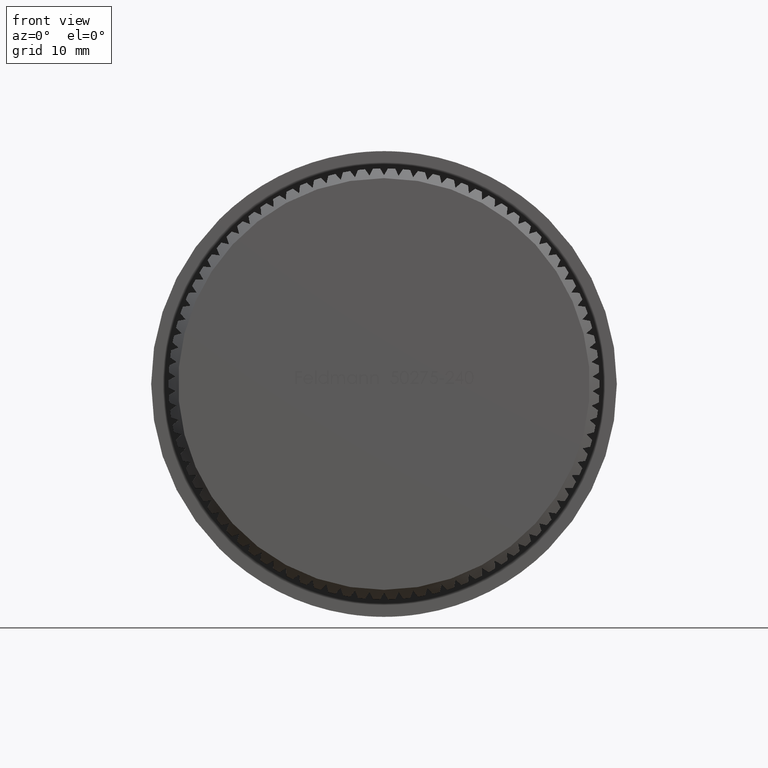
[diagram: clean part render]
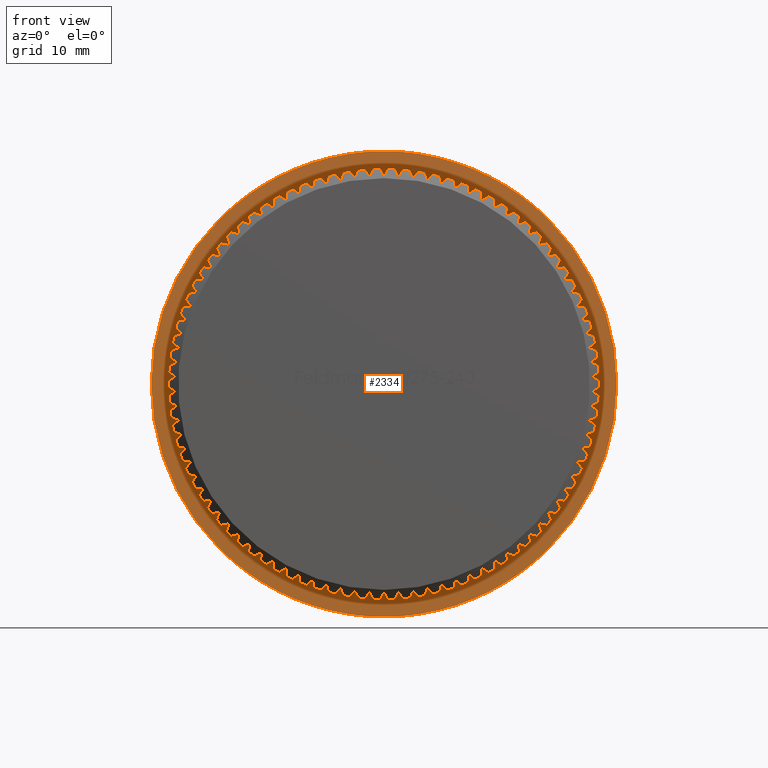
[diagram: same view with one face highlighted and labeled with its STEP entity id]
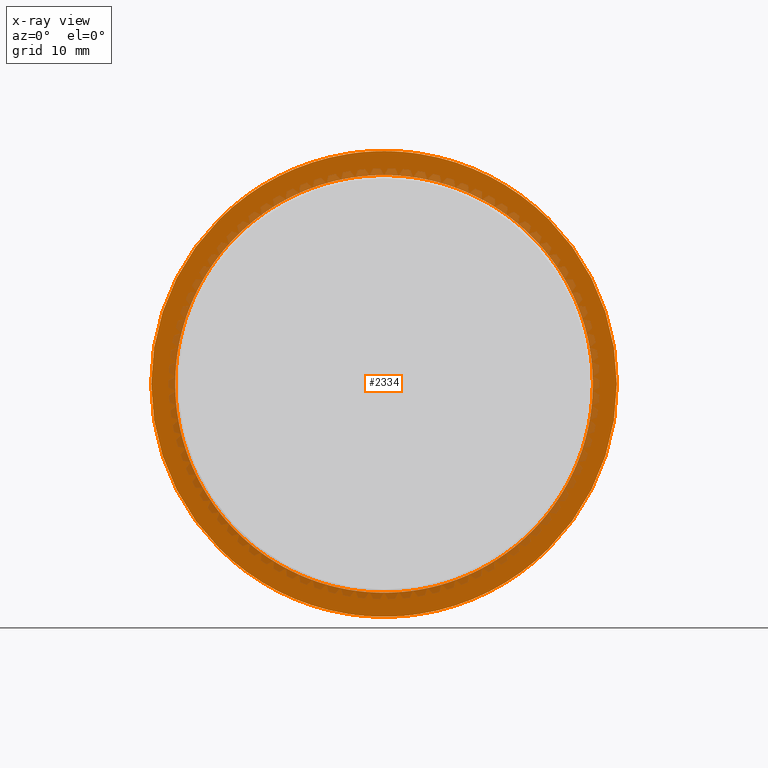
[diagram: x-ray of the same camera — body ghosted, the highlighted face saturated]
A machine part, front view. The second image highlights one B-rep face of the part: STEP entity #2334.
The next image is the same camera in x-ray: the body ghosted, the highlighted face saturated — about 20% of this face is hidden behind the body in this view.
In plain terms, the highlighted planar face has unit normal (0, -1, -0).
Its self-contained STEP definition (entity closure, byte-faithful):
#25 = DIRECTION ( 'NONE',  ( -0.0000000000000000000, -1.000000000000000000, -0.0000000000000000000 ) ) ;
#139 = DIRECTION ( 'NONE',  ( -0.0000000000000000000, -1.000000000000000000, -0.0000000000000000000 ) ) ;
#173 = CARTESIAN_POINT ( 'NONE',  ( 0.0000000000000000000, 11.00000000000000200, 0.0000000000000000000 ) ) ;
#241 = ORIENTED_EDGE ( 'NONE', *, *, #2260, .F. ) ;
#283 = CIRCLE ( 'NONE', #15016, 21.65000000000000200 ) ;
#295 = ORIENTED_EDGE ( 'NONE', *, *, #12555, .F. ) ;
#307 = EDGE_CURVE ( 'NONE', #7456, #17215, #4917, .T. ) ;
#333 = CARTESIAN_POINT ( 'NONE',  ( 0.0000000000000000000, 11.00000000000000200, 0.0000000000000000000 ) ) ;
#415 = CARTESIAN_POINT ( 'NONE',  ( 0.0000000000000000000, 11.00000000000000200, 0.0000000000000000000 ) ) ;
#436 = DIRECTION ( 'NONE',  ( 0.0000000000000000000, 0.0000000000000000000, -1.000000000000000000 ) ) ;
#545 = DIRECTION ( 'NONE',  ( -0.0000000000000000000, -1.000000000000000000, -0.0000000000000000000 ) ) ;
#589 = AXIS2_PLACEMENT_3D ( 'NONE', #8198, #15386, #22294 ) ;
#606 = EDGE_CURVE ( 'NONE', #18988, #7654, #14144, .T. ) ;
#621 = CARTESIAN_POINT ( 'NONE',  ( 0.0000000000000000000, 11.00000000000000200, 0.0000000000000000000 ) ) ;
#658 = VERTEX_POINT ( 'NONE', #1205 ) ;
#661 = CIRCLE ( 'NONE', #17797, 21.65000000000000200 ) ;
#682 = DIRECTION ( 'NONE',  ( 0.0000000000000000000, 0.0000000000000000000, -1.000000000000000000 ) ) ;
#739 = EDGE_CURVE ( 'NONE', #4125, #11846, #13564, .T. ) ;
#780 = DIRECTION ( 'NONE',  ( 0.0000000000000000000, 0.0000000000000000000, -1.000000000000000000 ) ) ;
#786 = ORIENTED_EDGE ( 'NONE', *, *, #5095, .F. ) ;
#801 = ORIENTED_EDGE ( 'NONE', *, *, #2697, .F. ) ;
#806 = CARTESIAN_POINT ( 'NONE',  ( 20.59037357779014600, 11.00000000000000200, -6.690217928217416300 ) ) ;
#840 = DIRECTION ( 'NONE',  ( 0.0000000000000000000, 0.0000000000000000000, -1.000000000000000000 ) ) ;
#893 = CIRCLE ( 'NONE', #9895, 21.65000000000000200 ) ;
#899 = AXIS2_PLACEMENT_3D ( 'NONE', #19299, #5022, #21346 ) ;
#925 = DIRECTION ( 'NONE',  ( -0.0000000000000000000, -1.000000000000000000, -0.0000000000000000000 ) ) ;
#929 = CARTESIAN_POINT ( 'NONE',  ( -11.47275207064878300, 11.00000000000000200, -18.36024128178669600 ) ) ;
#1022 = DIRECTION ( 'NONE',  ( 0.0000000000000000000, 0.0000000000000000000, -1.000000000000000000 ) ) ;
#1067 = CARTESIAN_POINT ( 'NONE',  ( -3.013097635785423600, 11.00000000000000200, 21.43930368825499900 ) ) ;
#1092 = CARTESIAN_POINT ( 'NONE',  ( -17.06043281558555700, 11.00000000000000200, 13.32907094080047200 ) ) ;
#1093 = CARTESIAN_POINT ( 'NONE',  ( 10.16405933431430200, 11.00000000000000200, 19.11581538539589400 ) ) ;
#1106 = DIRECTION ( 'NONE',  ( 0.0000000000000000000, 0.0000000000000000000, -1.000000000000000000 ) ) ;
#1121 = ORIENTED_EDGE ( 'NONE', *, *, #20017, .F. ) ;
#1179 = ORIENTED_EDGE ( 'NONE', *, *, #22141, .F. ) ;
#1199 = CARTESIAN_POINT ( 'NONE',  ( -1.510227656560163300, 11.00000000000000200, -21.59726168812520800 ) ) ;
#1205 = CARTESIAN_POINT ( 'NONE',  ( -20.07353045137096700, 11.00000000000000200, 8.110232747454446700 ) ) ;
#1213 = EDGE_CURVE ( 'NONE', #8573, #10498, #2414, .T. ) ;
#1303 = DIRECTION ( 'NONE',  ( 0.0000000000000000000, 0.0000000000000000000, -1.000000000000000000 ) ) ;
#1401 = ORIENTED_EDGE ( 'NONE', *, *, #22582, .F. ) ;
#1423 = EDGE_CURVE ( 'NONE', #22857, #20800, #10479, .T. ) ;
#1431 = CARTESIAN_POINT ( 'NONE',  ( 21.32108785271427100, 11.00000000000000200, 3.759483046489263000 ) ) ;
#1457 = AXIS2_PLACEMENT_3D ( 'NONE', #17093, #16847, #1106 ) ;
#1484 = CARTESIAN_POINT ( 'NONE',  ( 11.47275207064866200, 11.00000000000000200, 18.36024128178676700 ) ) ;
#1533 = DIRECTION ( 'NONE',  ( 0.0000000000000000000, 0.0000000000000000000, -1.000000000000000000 ) ) ;
#1546 = CARTESIAN_POINT ( 'NONE',  ( 0.0000000000000000000, 11.00000000000000200, 0.0000000000000000000 ) ) ;
#1552 = DIRECTION ( 'NONE',  ( -0.0000000000000000000, -1.000000000000000000, -0.0000000000000000000 ) ) ;
#1569 = AXIS2_PLACEMENT_3D ( 'NONE', #5839, #9651, #7634 ) ;
#1581 = AXIS2_PLACEMENT_3D ( 'NONE', #3091, #19282, #11789 ) ;
#1593 = CARTESIAN_POINT ( 'NONE',  ( 0.0000000000000000000, 11.00000000000000200, 0.0000000000000000000 ) ) ;
#1629 = AXIS2_PLACEMENT_3D ( 'NONE', #20391, #4325, #22133 ) ;
#1681 = VERTEX_POINT ( 'NONE', #22996 ) ;
#1711 = ORIENTED_EDGE ( 'NONE', *, *, #15370, .F. ) ;
#1720 = CIRCLE ( 'NONE', #14721, 21.65000000000000200 ) ;
#1750 = DIRECTION ( 'NONE',  ( 0.0000000000000000000, 0.0000000000000000000, -1.000000000000000000 ) ) ;
#1781 = DIRECTION ( 'NONE',  ( -0.0000000000000000000, -1.000000000000000000, -0.0000000000000000000 ) ) ;
#1794 = CARTESIAN_POINT ( 'NONE',  ( 0.0000000000000000000, 11.00000000000000200, 0.0000000000000000000 ) ) ;
#1809 = DIRECTION ( 'NONE',  ( 0.0000000000000000000, 0.0000000000000000000, -1.000000000000000000 ) ) ;
#1818 = DIRECTION ( 'NONE',  ( 0.0000000000000000000, 0.0000000000000000000, -1.000000000000000000 ) ) ;
#1844 = VERTEX_POINT ( 'NONE', #14461 ) ;
#1867 = CARTESIAN_POINT ( 'NONE',  ( 0.0000000000000000000, 11.00000000000000200, 0.0000000000000000000 ) ) ;
#1890 = CIRCLE ( 'NONE', #13328, 21.65000000000000200 ) ;
#1896 = ORIENTED_EDGE ( 'NONE', *, *, #3685, .F. ) ;
#1924 = ORIENTED_EDGE ( 'NONE', *, *, #11682, .F. ) ;
#2013 = EDGE_CURVE ( 'NONE', #23120, #22600, #21934, .T. ) ;
#2056 = CIRCLE ( 'NONE', #16609, 21.65000000000000200 ) ;
#2128 = CARTESIAN_POINT ( 'NONE',  ( 0.0000000000000000000, 11.00000000000000200, 0.0000000000000000000 ) ) ;
#2227 = VERTEX_POINT ( 'NONE', #11995 ) ;
#2230 = VERTEX_POINT ( 'NONE', #8558 ) ;
#2260 = EDGE_CURVE ( 'NONE', #10494, #4382, #5442, .T. ) ;
#2264 = CARTESIAN_POINT ( 'NONE',  ( 0.0000000000000000000, 11.00000000000000200, 0.0000000000000000000 ) ) ;
#2294 = CIRCLE ( 'NONE', #21161, 21.65000000000000200 ) ;
#2302 = CARTESIAN_POINT ( 'NONE',  ( -21.00690247387530700, 11.00000000000000200, -5.237609039732886300 ) ) ;
#2334 = ADVANCED_FACE ( 'NONE', ( #19675, #18826 ), #14115, .T. ) ;
#2340 = EDGE_CURVE ( 'NONE', #3838, #7643, #17991, .T. ) ;
#2414 = CIRCLE ( 'NONE', #20014, 21.65000000000000200 ) ;
#2437 = DIRECTION ( 'NONE',  ( 0.0000000000000000000, 0.0000000000000000000, -1.000000000000000000 ) ) ;
#2519 = EDGE_CURVE ( 'NONE', #21491, #10124, #14649, .T. ) ;
#2526 = AXIS2_PLACEMENT_3D ( 'NONE', #12677, #21695, #10967 ) ;
#2555 = AXIS2_PLACEMENT_3D ( 'NONE', #21973, #18662, #20387 ) ;
#2577 = CIRCLE ( 'NONE', #6182, 21.65000000000000200 ) ;
#2586 = CARTESIAN_POINT ( 'NONE',  ( 0.0000000000000000000, 11.00000000000000200, 0.0000000000000000000 ) ) ;
#2633 = AXIS2_PLACEMENT_3D ( 'NONE', #3407, #14219, #17491 ) ;
#2661 = VERTEX_POINT ( 'NONE', #1092 ) ;
#2687 = DIRECTION ( 'NONE',  ( -0.0000000000000000000, -1.000000000000000000, -0.0000000000000000000 ) ) ;
#2696 = DIRECTION ( 'NONE',  ( -0.0000000000000000000, -1.000000000000000000, -0.0000000000000000000 ) ) ;
#2697 = EDGE_CURVE ( 'NONE', #10124, #22836, #22763, .T. ) ;
#2723 = VERTEX_POINT ( 'NONE', #8077 ) ;
#2733 = DIRECTION ( 'NONE',  ( 0.0000000000000000000, 0.0000000000000000000, -1.000000000000000000 ) ) ;
#2741 = CIRCLE ( 'NONE', #18920, 21.65000000000000200 ) ;
#2784 = CARTESIAN_POINT ( 'NONE',  ( -24.14999999999999900, 11.00000000000000400, 2.957522019940857900E-015 ) ) ;
#2826 = ORIENTED_EDGE ( 'NONE', *, *, #606, .F. ) ;
#2839 = DIRECTION ( 'NONE',  ( 0.0000000000000000000, 0.0000000000000000000, -1.000000000000000000 ) ) ;
#2876 = EDGE_CURVE ( 'NONE', #14438, #2723, #7909, .T. ) ;
#2910 = ORIENTED_EDGE ( 'NONE', *, *, #13980, .F. ) ;
#2919 = CIRCLE ( 'NONE', #3775, 21.65000000000000200 ) ;
#2954 = AXIS2_PLACEMENT_3D ( 'NONE', #1794, #4419, #9845 ) ;
#2958 = DIRECTION ( 'NONE',  ( -0.0000000000000000000, -1.000000000000000000, -0.0000000000000000000 ) ) ;
#2999 = DIRECTION ( 'NONE',  ( 0.0000000000000000000, 0.0000000000000000000, -1.000000000000000000 ) ) ;
#3091 = CARTESIAN_POINT ( 'NONE',  ( 0.0000000000000000000, 11.00000000000000200, 0.0000000000000000000 ) ) ;
#3166 = AXIS2_PLACEMENT_3D ( 'NONE', #21405, #3694, #10678 ) ;
#3211 = ORIENTED_EDGE ( 'NONE', *, *, #12109, .F. ) ;
#3217 = CARTESIAN_POINT ( 'NONE',  ( 21.53139903472309800, 11.00000000000000200, 2.263041229744916300 ) ) ;
#3255 = CARTESIAN_POINT ( 'NONE',  ( 0.0000000000000000000, 11.00000000000000200, 0.0000000000000000000 ) ) ;
#3342 = DIRECTION ( 'NONE',  ( -0.0000000000000000000, -1.000000000000000000, -0.0000000000000000000 ) ) ;
#3350 = EDGE_CURVE ( 'NONE', #13443, #3838, #6792, .T. ) ;
#3391 = CARTESIAN_POINT ( 'NONE',  ( -15.03935372043721600, 11.00000000000000200, -15.57370667733187400 ) ) ;
#3407 = CARTESIAN_POINT ( 'NONE',  ( 0.0000000000000000000, 11.00000000000000200, 0.0000000000000000000 ) ) ;
#3410 = CARTESIAN_POINT ( 'NONE',  ( 0.0000000000000000000, 11.00000000000000200, 0.0000000000000000000 ) ) ;
#3423 = AXIS2_PLACEMENT_3D ( 'NONE', #14179, #17539, #22947 ) ;
#3443 = AXIS2_PLACEMENT_3D ( 'NONE', #5908, #7939, #20123 ) ;
#3465 = DIRECTION ( 'NONE',  ( 0.0000000000000000000, -1.000000000000000000, -0.0000000000000000000 ) ) ;
#3475 = CIRCLE ( 'NONE', #8515, 21.65000000000000200 ) ;
#3484 = CARTESIAN_POINT ( 'NONE',  ( 0.0000000000000000000, 11.00000000000000200, 0.0000000000000000000 ) ) ;
#3507 = CARTESIAN_POINT ( 'NONE',  ( 0.0000000000000000000, 11.00000000000000200, 0.0000000000000000000 ) ) ;
#3509 = EDGE_CURVE ( 'NONE', #20800, #9832, #2919, .T. ) ;
#3510 = ORIENTED_EDGE ( 'NONE', *, *, #7674, .F. ) ;
#3525 = VERTEX_POINT ( 'NONE', #14440 ) ;
#3549 = CIRCLE ( 'NONE', #10578, 21.65000000000000200 ) ;
#3550 = EDGE_CURVE ( 'NONE', #2227, #22701, #14057, .T. ) ;
#3636 = VERTEX_POINT ( 'NONE', #3391 ) ;
#3665 = CARTESIAN_POINT ( 'NONE',  ( 0.0000000000000000000, 11.00000000000000200, 0.0000000000000000000 ) ) ;
#3671 = AXIS2_PLACEMENT_3D ( 'NONE', #1593, #12152, #1818 ) ;
#3685 = EDGE_CURVE ( 'NONE', #9959, #3525, #661, .T. ) ;
#3689 = AXIS2_PLACEMENT_3D ( 'NONE', #3410, #21023, #1750 ) ;
#3694 = DIRECTION ( 'NONE',  ( -0.0000000000000000000, -1.000000000000000000, -0.0000000000000000000 ) ) ;
#3710 = ORIENTED_EDGE ( 'NONE', *, *, #19003, .F. ) ;
#3769 = AXIS2_PLACEMENT_3D ( 'NONE', #14909, #13095, #11389 ) ;
#3775 = AXIS2_PLACEMENT_3D ( 'NONE', #13789, #15901, #5046 ) ;
#3816 = EDGE_CURVE ( 'NONE', #21129, #6275, #3475, .T. ) ;
#3817 = ORIENTED_EDGE ( 'NONE', *, *, #14251, .T. ) ;
#3838 = VERTEX_POINT ( 'NONE', #14885 ) ;
#3850 = DIRECTION ( 'NONE',  ( 0.0000000000000000000, 0.0000000000000000000, -1.000000000000000000 ) ) ;
#3886 = CARTESIAN_POINT ( 'NONE',  ( 0.0000000000000000000, 11.00000000000000200, 0.0000000000000000000 ) ) ;
#3959 = DIRECTION ( 'NONE',  ( 0.0000000000000000000, 0.0000000000000000000, -1.000000000000000000 ) ) ;
#3971 = CIRCLE ( 'NONE', #10465, 21.65000000000000200 ) ;
#4010 = EDGE_CURVE ( 'NONE', #22803, #20069, #19358, .T. ) ;
#4088 = ORIENTED_EDGE ( 'NONE', *, *, #21345, .F. ) ;
#4122 = DIRECTION ( 'NONE',  ( -0.0000000000000000000, -1.000000000000000000, -0.0000000000000000000 ) ) ;
#4125 = VERTEX_POINT ( 'NONE', #15355 ) ;
#4128 = VERTEX_POINT ( 'NONE', #8016 ) ;
#4132 = CARTESIAN_POINT ( 'NONE',  ( 0.0000000000000000000, 11.00000000000000200, 0.0000000000000000000 ) ) ;
#4143 = DIRECTION ( 'NONE',  ( -0.0000000000000000000, -1.000000000000000000, -0.0000000000000000000 ) ) ;
#4166 = ORIENTED_EDGE ( 'NONE', *, *, #7775, .F. ) ;
#4192 = DIRECTION ( 'NONE',  ( 0.0000000000000000000, 0.0000000000000000000, -1.000000000000000000 ) ) ;
#4199 = AXIS2_PLACEMENT_3D ( 'NONE', #18856, #11820, #15341 ) ;
#4229 = AXIS2_PLACEMENT_3D ( 'NONE', #16373, #18212, #21459 ) ;
#4234 = CIRCLE ( 'NONE', #19043, 21.65000000000000200 ) ;
#4278 = DIRECTION ( 'NONE',  ( -0.0000000000000000000, -1.000000000000000000, -0.0000000000000000000 ) ) ;
#4289 = ORIENTED_EDGE ( 'NONE', *, *, #16786, .F. ) ;
#4298 = DIRECTION ( 'NONE',  ( -0.0000000000000000000, -1.000000000000000000, -0.0000000000000000000 ) ) ;
#4311 = CARTESIAN_POINT ( 'NONE',  ( 0.0000000000000000000, 11.00000000000000200, 0.0000000000000000000 ) ) ;
#4325 = DIRECTION ( 'NONE',  ( -0.0000000000000000000, -1.000000000000000000, -0.0000000000000000000 ) ) ;
#4366 = DIRECTION ( 'NONE',  ( 0.0000000000000000000, 0.0000000000000000000, -1.000000000000000000 ) ) ;
#4369 = CARTESIAN_POINT ( 'NONE',  ( 16.08908547158571500, 11.00000000000000200, -14.48667762766914900 ) ) ;
#4382 = VERTEX_POINT ( 'NONE', #12370 ) ;
#4391 = ORIENTED_EDGE ( 'NONE', *, *, #10370, .F. ) ;
#4419 = DIRECTION ( 'NONE',  ( -0.0000000000000000000, -1.000000000000000000, -0.0000000000000000000 ) ) ;
#4442 = EDGE_CURVE ( 'NONE', #22492, #16503, #15148, .T. ) ;
#4447 = CARTESIAN_POINT ( 'NONE',  ( 0.0000000000000000000, 11.00000000000000200, 0.0000000000000000000 ) ) ;
#4475 = VERTEX_POINT ( 'NONE', #19800 ) ;
#4531 = CARTESIAN_POINT ( 'NONE',  ( -17.94866344581667800, 11.00000000000000200, 12.10652636014163100 ) ) ;
#4536 = DIRECTION ( 'NONE',  ( 0.0000000000000000000, 0.0000000000000000000, -1.000000000000000000 ) ) ;
#4599 = CARTESIAN_POINT ( 'NONE',  ( 20.59037357779000400, 11.00000000000000200, 6.690217928217827600 ) ) ;
#4615 = DIRECTION ( 'NONE',  ( 0.0000000000000000000, 0.0000000000000000000, -1.000000000000000000 ) ) ;
#4694 = CARTESIAN_POINT ( 'NONE',  ( 0.0000000000000000000, 11.00000000000000200, 0.0000000000000000000 ) ) ;
#4703 = ORIENTED_EDGE ( 'NONE', *, *, #4954, .F. ) ;
#4728 = CIRCLE ( 'NONE', #22076, 21.65000000000000200 ) ;
#4825 = DIRECTION ( 'NONE',  ( -0.0000000000000000000, -1.000000000000000000, -0.0000000000000000000 ) ) ;
#4869 = ORIENTED_EDGE ( 'NONE', *, *, #10153, .F. ) ;
#4917 = CIRCLE ( 'NONE', #14928, 21.65000000000000200 ) ;
#4950 = DIRECTION ( 'NONE',  ( -0.0000000000000000000, -1.000000000000000000, -0.0000000000000000000 ) ) ;
#4952 = DIRECTION ( 'NONE',  ( -0.0000000000000000000, -1.000000000000000000, -0.0000000000000000000 ) ) ;
#4954 = EDGE_CURVE ( 'NONE', #7654, #23140, #5080, .T. ) ;
#5008 = CARTESIAN_POINT ( 'NONE',  ( 0.0000000000000000000, 11.00000000000000200, 0.0000000000000000000 ) ) ;
#5022 = DIRECTION ( 'NONE',  ( -0.0000000000000000000, -1.000000000000000000, -0.0000000000000000000 ) ) ;
#5023 = CARTESIAN_POINT ( 'NONE',  ( 20.07353045137085700, 11.00000000000000200, 8.110232747454725600 ) ) ;
#5042 = DIRECTION ( 'NONE',  ( -0.0000000000000000000, -1.000000000000000000, -0.0000000000000000000 ) ) ;
#5046 = DIRECTION ( 'NONE',  ( 0.0000000000000000000, 0.0000000000000000000, -1.000000000000000000 ) ) ;
#5056 = DIRECTION ( 'NONE',  ( -0.0000000000000000000, -1.000000000000000000, -0.0000000000000000000 ) ) ;
#5080 = CIRCLE ( 'NONE', #9884, 21.65000000000000200 ) ;
#5095 = EDGE_CURVE ( 'NONE', #17016, #21491, #15692, .T. ) ;
#5146 = AXIS2_PLACEMENT_3D ( 'NONE', #12697, #14361, #3850 ) ;
#5176 = VERTEX_POINT ( 'NONE', #6378 ) ;
#5180 = DIRECTION ( 'NONE',  ( -0.0000000000000000000, -1.000000000000000000, -0.0000000000000000000 ) ) ;
#5184 = DIRECTION ( 'NONE',  ( -0.0000000000000000000, -1.000000000000000000, -0.0000000000000000000 ) ) ;
#5196 = CARTESIAN_POINT ( 'NONE',  ( 21.00690247387537800, 11.00000000000000200, -5.237609039732603800 ) ) ;
#5216 = DIRECTION ( 'NONE',  ( -0.0000000000000000000, -1.000000000000000000, -0.0000000000000000000 ) ) ;
#5227 = CARTESIAN_POINT ( 'NONE',  ( 17.06043281558537600, 11.00000000000000200, 13.32907094080070100 ) ) ;
#5247 = AXIS2_PLACEMENT_3D ( 'NONE', #7446, #5794, #14636 ) ;
#5320 = ORIENTED_EDGE ( 'NONE', *, *, #5504, .F. ) ;
#5345 = ORIENTED_EDGE ( 'NONE', *, *, #17332, .F. ) ;
#5363 = DIRECTION ( 'NONE',  ( 0.0000000000000000000, 0.0000000000000000000, -1.000000000000000000 ) ) ;
#5432 = DIRECTION ( 'NONE',  ( -0.0000000000000000000, -1.000000000000000000, -0.0000000000000000000 ) ) ;
#5442 = CIRCLE ( 'NONE', #13907, 21.65000000000000200 ) ;
#5468 = EDGE_CURVE ( 'NONE', #8677, #2230, #2577, .T. ) ;
#5504 = EDGE_CURVE ( 'NONE', #17215, #10533, #10905, .T. ) ;
#5523 = ORIENTED_EDGE ( 'NONE', *, *, #5468, .F. ) ;
#5556 = AXIS2_PLACEMENT_3D ( 'NONE', #3507, #1781, #17602 ) ;
#5653 = AXIS2_PLACEMENT_3D ( 'NONE', #9964, #22499, #4536 ) ;
#5661 = EDGE_CURVE ( 'NONE', #19696, #6515, #4234, .T. ) ;
#5757 = DIRECTION ( 'NONE',  ( -0.0000000000000000000, -1.000000000000000000, -0.0000000000000000000 ) ) ;
#5779 = ORIENTED_EDGE ( 'NONE', *, *, #19418, .F. ) ;
#5790 = DIRECTION ( 'NONE',  ( -0.0000000000000000000, -1.000000000000000000, -0.0000000000000000000 ) ) ;
#5794 = DIRECTION ( 'NONE',  ( -0.0000000000000000000, -1.000000000000000000, -0.0000000000000000000 ) ) ;
#5819 = CARTESIAN_POINT ( 'NONE',  ( 12.72555071213182900, 11.00000000000000200, 17.51521792821776900 ) ) ;
#5839 = CARTESIAN_POINT ( 'NONE',  ( 0.0000000000000000000, 11.00000000000000200, 0.0000000000000000000 ) ) ;
#5895 = DIRECTION ( 'NONE',  ( 0.0000000000000000000, 0.0000000000000000000, -1.000000000000000000 ) ) ;
#5908 = CARTESIAN_POINT ( 'NONE',  ( 0.0000000000000000000, 11.00000000000000200, 0.0000000000000000000 ) ) ;
#5921 = CARTESIAN_POINT ( 'NONE',  ( 17.94866344581651100, 11.00000000000000200, 12.10652636014188300 ) ) ;
#5945 = ORIENTED_EDGE ( 'NONE', *, *, #18443, .F. ) ;
#5982 = CARTESIAN_POINT ( 'NONE',  ( 19.45889110237705600, 11.00000000000000200, -9.490735327983348000 ) ) ;
#6027 = EDGE_CURVE ( 'NONE', #21202, #15699, #9484, .T. ) ;
#6030 = DIRECTION ( 'NONE',  ( 0.0000000000000000000, 0.0000000000000000000, -1.000000000000000000 ) ) ;
#6064 = AXIS2_PLACEMENT_3D ( 'NONE', #621, #545, #4192 ) ;
#6084 = ORIENTED_EDGE ( 'NONE', *, *, #7000, .F. ) ;
#6122 = AXIS2_PLACEMENT_3D ( 'NONE', #22284, #6475, #18978 ) ;
#6127 = DIRECTION ( 'NONE',  ( 0.0000000000000000000, 0.0000000000000000000, -1.000000000000000000 ) ) ;
#6129 = ORIENTED_EDGE ( 'NONE', *, *, #9271, .F. ) ;
#6133 = ORIENTED_EDGE ( 'NONE', *, *, #15068, .F. ) ;
#6158 = CARTESIAN_POINT ( 'NONE',  ( 0.0000000000000000000, 11.00000000000000200, 0.0000000000000000000 ) ) ;
#6162 = CIRCLE ( 'NONE', #16771, 21.65000000000000200 ) ;
#6165 = DIRECTION ( 'NONE',  ( -0.0000000000000000000, -1.000000000000000000, -0.0000000000000000000 ) ) ;
#6181 = DIRECTION ( 'NONE',  ( 0.0000000000000000000, 0.0000000000000000000, -1.000000000000000000 ) ) ;
#6182 = AXIS2_PLACEMENT_3D ( 'NONE', #6747, #15725, #19466 ) ;
#6206 = ORIENTED_EDGE ( 'NONE', *, *, #12418, .F. ) ;
#6275 = VERTEX_POINT ( 'NONE', #13274 ) ;
#6378 = CARTESIAN_POINT ( 'NONE',  ( -10.16405933431455800, 11.00000000000000200, 19.11581538539576600 ) ) ;
#6435 = AXIS2_PLACEMENT_3D ( 'NONE', #8826, #10552, #10706 ) ;
#6475 = DIRECTION ( 'NONE',  ( -0.0000000000000000000, -1.000000000000000000, -0.0000000000000000000 ) ) ;
#6499 = AXIS2_PLACEMENT_3D ( 'NONE', #1546, #3342, #17584 ) ;
#6515 = VERTEX_POINT ( 'NONE', #17885 ) ;
#6524 = CARTESIAN_POINT ( 'NONE',  ( -12.72555071213207100, 11.00000000000000200, 17.51521792821759500 ) ) ;
#6576 = CARTESIAN_POINT ( 'NONE',  ( -21.63681140496343100, 11.00000000000000200, 0.7555741036090728400 ) ) ;
#6632 = AXIS2_PLACEMENT_3D ( 'NONE', #13264, #16884, #6181 ) ;
#6653 = CARTESIAN_POINT ( 'NONE',  ( 21.53139903472314400, 11.00000000000000200, -2.263041229744485100 ) ) ;
#6658 = DIRECTION ( 'NONE',  ( -0.0000000000000000000, -1.000000000000000000, -0.0000000000000000000 ) ) ;
#6661 = ORIENTED_EDGE ( 'NONE', *, *, #2340, .F. ) ;
#6747 = CARTESIAN_POINT ( 'NONE',  ( 0.0000000000000000000, 11.00000000000000200, 0.0000000000000000000 ) ) ;
#6762 = ORIENTED_EDGE ( 'NONE', *, *, #3816, .F. ) ;
#6792 = CIRCLE ( 'NONE', #14958, 21.65000000000000200 ) ;
#6911 = CIRCLE ( 'NONE', #16990, 24.14999999999999900 ) ;
#6937 = CARTESIAN_POINT ( 'NONE',  ( 0.0000000000000000000, 11.00000000000000200, 0.0000000000000000000 ) ) ;
#6973 = DIRECTION ( 'NONE',  ( 0.0000000000000000000, 0.0000000000000000000, -1.000000000000000000 ) ) ;
#7000 = EDGE_CURVE ( 'NONE', #2230, #16743, #11978, .T. ) ;
#7014 = ORIENTED_EDGE ( 'NONE', *, *, #16720, .F. ) ;
#7016 = DIRECTION ( 'NONE',  ( 0.0000000000000000000, 0.0000000000000000000, -1.000000000000000000 ) ) ;
#7020 = CARTESIAN_POINT ( 'NONE',  ( 20.07353045137102400, 11.00000000000000200, -8.110232747454306300 ) ) ;
#7044 = VERTEX_POINT ( 'NONE', #21625 ) ;
#7066 = CIRCLE ( 'NONE', #6122, 21.65000000000000200 ) ;
#7117 = CARTESIAN_POINT ( 'NONE',  ( 21.00690247387527200, 11.00000000000000200, 5.237609039733021300 ) ) ;
#7143 = CARTESIAN_POINT ( 'NONE',  ( 0.0000000000000000000, 11.00000000000000200, 0.0000000000000000000 ) ) ;
#7147 = CIRCLE ( 'NONE', #19909, 21.65000000000000200 ) ;
#7174 = DIRECTION ( 'NONE',  ( 0.0000000000000000000, 0.0000000000000000000, -1.000000000000000000 ) ) ;
#7215 = VERTEX_POINT ( 'NONE', #15626 ) ;
#7223 = AXIS2_PLACEMENT_3D ( 'NONE', #10966, #12601, #14503 ) ;
#7225 = ORIENTED_EDGE ( 'NONE', *, *, #19272, .F. ) ;
#7229 = DIRECTION ( 'NONE',  ( 0.0000000000000000000, 0.0000000000000000000, -1.000000000000000000 ) ) ;
#7234 = ORIENTED_EDGE ( 'NONE', *, *, #21461, .F. ) ;
#7244 = CARTESIAN_POINT ( 'NONE',  ( -17.06043281558546800, 11.00000000000000200, -13.32907094080059100 ) ) ;
#7279 = CIRCLE ( 'NONE', #14414, 21.65000000000000200 ) ;
#7296 = DIRECTION ( 'NONE',  ( 0.0000000000000000000, 0.0000000000000000000, -1.000000000000000000 ) ) ;
#7309 = AXIS2_PLACEMENT_3D ( 'NONE', #11600, #4825, #2839 ) ;
#7318 = ORIENTED_EDGE ( 'NONE', *, *, #10191, .F. ) ;
#7322 = EDGE_CURVE ( 'NONE', #658, #7044, #21522, .T. ) ;
#7358 = ORIENTED_EDGE ( 'NONE', *, *, #13094, .F. ) ;
#7361 = CIRCLE ( 'NONE', #19572, 21.65000000000000200 ) ;
#7388 = DIRECTION ( 'NONE',  ( -0.0000000000000000000, -1.000000000000000000, -0.0000000000000000000 ) ) ;
#7446 = CARTESIAN_POINT ( 'NONE',  ( 0.0000000000000000000, 11.00000000000000200, 0.0000000000000000000 ) ) ;
#7456 = VERTEX_POINT ( 'NONE', #8975 ) ;
#7554 = CIRCLE ( 'NONE', #4229, 21.65000000000000200 ) ;
#7574 = ORIENTED_EDGE ( 'NONE', *, *, #17240, .F. ) ;
#7625 = AXIS2_PLACEMENT_3D ( 'NONE', #3886, #21904, #3959 ) ;
#7634 = DIRECTION ( 'NONE',  ( 0.0000000000000000000, 0.0000000000000000000, -1.000000000000000000 ) ) ;
#7643 = VERTEX_POINT ( 'NONE', #20597 ) ;
#7654 = VERTEX_POINT ( 'NONE', #806 ) ;
#7674 = EDGE_CURVE ( 'NONE', #20634, #18317, #4728, .T. ) ;
#7678 = CIRCLE ( 'NONE', #8786, 21.65000000000000200 ) ;
#7696 = ORIENTED_EDGE ( 'NONE', *, *, #3509, .F. ) ;
#7721 = CIRCLE ( 'NONE', #3423, 21.65000000000000200 ) ;
#7752 = CIRCLE ( 'NONE', #15500, 24.14999999999999900 ) ;
#7775 = EDGE_CURVE ( 'NONE', #21823, #9590, #11134, .T. ) ;
#7777 = ORIENTED_EDGE ( 'NONE', *, *, #20301, .F. ) ;
#7785 = CARTESIAN_POINT ( 'NONE',  ( 7.404736103000478100, 11.00000000000000200, 20.34434524001501300 ) ) ;
#7812 = CARTESIAN_POINT ( 'NONE',  ( -8.805848322591098000, 11.00000000000000200, 19.77825915796230300 ) ) ;
#7827 = CARTESIAN_POINT ( 'NONE',  ( 5.967548753437770700, 11.00000000000000200, 20.81131571706468400 ) ) ;
#7850 = CARTESIAN_POINT ( 'NONE',  ( 0.0000000000000000000, 11.00000000000000200, 0.0000000000000000000 ) ) ;
#7858 = CARTESIAN_POINT ( 'NONE',  ( -21.53139903472311200, 11.00000000000000200, -2.263041229744775500 ) ) ;
#7885 = DIRECTION ( 'NONE',  ( 0.0000000000000000000, 0.0000000000000000000, -1.000000000000000000 ) ) ;
#7909 = CIRCLE ( 'NONE', #18998, 21.65000000000000200 ) ;
#7912 = AXIS2_PLACEMENT_3D ( 'NONE', #20003, #5790, #9525 ) ;
#7939 = DIRECTION ( 'NONE',  ( -0.0000000000000000000, -1.000000000000000000, -0.0000000000000000000 ) ) ;
#7980 = CIRCLE ( 'NONE', #10642, 21.65000000000000200 ) ;
#8016 = CARTESIAN_POINT ( 'NONE',  ( -5.967548753437905700, 11.00000000000000200, -20.81131571706464100 ) ) ;
#8038 = ORIENTED_EDGE ( 'NONE', *, *, #307, .F. ) ;
#8077 = CARTESIAN_POINT ( 'NONE',  ( 1.734723475976807100E-015, 11.00000000000000200, 21.65000000000000200 ) ) ;
#8078 = CARTESIAN_POINT ( 'NONE',  ( -16.08908547158561200, 11.00000000000000200, 14.48667762766925700 ) ) ;
#8110 = CARTESIAN_POINT ( 'NONE',  ( 0.0000000000000000000, 11.00000000000000200, 0.0000000000000000000 ) ) ;
#8169 = ORIENTED_EDGE ( 'NONE', *, *, #16355, .F. ) ;
#8177 = AXIS2_PLACEMENT_3D ( 'NONE', #415, #21573, #14752 ) ;
#8198 = CARTESIAN_POINT ( 'NONE',  ( 0.0000000000000000000, 11.00000000000000200, 0.0000000000000000000 ) ) ;
#8207 = ORIENTED_EDGE ( 'NONE', *, *, #23023, .F. ) ;
#8242 = CIRCLE ( 'NONE', #11626, 21.65000000000000200 ) ;
#8259 = EDGE_CURVE ( 'NONE', #1681, #16738, #17817, .T. ) ;
#8315 = ORIENTED_EDGE ( 'NONE', *, *, #11472, .F. ) ;
#8318 = CARTESIAN_POINT ( 'NONE',  ( 0.0000000000000000000, 11.00000000000000200, 0.0000000000000000000 ) ) ;
#8371 = ORIENTED_EDGE ( 'NONE', *, *, #19547, .F. ) ;
#8397 = CARTESIAN_POINT ( 'NONE',  ( -15.03935372043731900, 11.00000000000000200, 15.57370667733177800 ) ) ;
#8515 = AXIS2_PLACEMENT_3D ( 'NONE', #7850, #11440, #780 ) ;
#8521 = ORIENTED_EDGE ( 'NONE', *, *, #1213, .F. ) ;
#8528 = DIRECTION ( 'NONE',  ( 0.0000000000000000000, 0.0000000000000000000, -1.000000000000000000 ) ) ;
#8548 = ORIENTED_EDGE ( 'NONE', *, *, #21320, .F. ) ;
#8558 = CARTESIAN_POINT ( 'NONE',  ( -18.74944999193312300, 11.00000000000000200, 10.82499999999995800 ) ) ;
#8570 = DIRECTION ( 'NONE',  ( -0.0000000000000000000, -1.000000000000000000, -0.0000000000000000000 ) ) ;
#8573 = VERTEX_POINT ( 'NONE', #9955 ) ;
#8620 = CIRCLE ( 'NONE', #6632, 21.65000000000000200 ) ;
#8677 = VERTEX_POINT ( 'NONE', #4531 ) ;
#8751 = CARTESIAN_POINT ( 'NONE',  ( 0.0000000000000000000, 11.00000000000000200, 0.0000000000000000000 ) ) ;
#8786 = AXIS2_PLACEMENT_3D ( 'NONE', #18521, #9683, #840 ) ;
#8804 = DIRECTION ( 'NONE',  ( 0.0000000000000000000, 0.0000000000000000000, -1.000000000000000000 ) ) ;
#8807 = DIRECTION ( 'NONE',  ( 0.0000000000000000000, 0.0000000000000000000, -1.000000000000000000 ) ) ;
#8826 = CARTESIAN_POINT ( 'NONE',  ( 0.0000000000000000000, 11.00000000000000200, 0.0000000000000000000 ) ) ;
#8829 = CARTESIAN_POINT ( 'NONE',  ( 0.0000000000000000000, 11.00000000000000400, 0.0000000000000000000 ) ) ;
#8843 = CARTESIAN_POINT ( 'NONE',  ( -1.510227656560314100, 11.00000000000000200, 21.59726168812519400 ) ) ;
#8849 = DIRECTION ( 'NONE',  ( -0.0000000000000000000, -1.000000000000000000, -0.0000000000000000000 ) ) ;
#8872 = VERTEX_POINT ( 'NONE', #7244 ) ;
#8888 = ORIENTED_EDGE ( 'NONE', *, *, #739, .F. ) ;
#8921 = DIRECTION ( 'NONE',  ( -0.0000000000000000000, -1.000000000000000000, -0.0000000000000000000 ) ) ;
#8956 = CARTESIAN_POINT ( 'NONE',  ( -4.501288106204359700, 11.00000000000000200, -21.17689555588692900 ) ) ;
#8957 = CIRCLE ( 'NONE', #7625, 21.65000000000000200 ) ;
#8962 = DIRECTION ( 'NONE',  ( 0.0000000000000000000, 0.0000000000000000000, -1.000000000000000000 ) ) ;
#8972 = VERTEX_POINT ( 'NONE', #9387 ) ;
#8975 = CARTESIAN_POINT ( 'NONE',  ( 21.63681140496343100, 11.00000000000000200, -0.7555741036089324000 ) ) ;
#8976 = DIRECTION ( 'NONE',  ( -0.0000000000000000000, -1.000000000000000000, -0.0000000000000000000 ) ) ;
#8990 = ORIENTED_EDGE ( 'NONE', *, *, #10156, .T. ) ;
#8995 = AXIS2_PLACEMENT_3D ( 'NONE', #3255, #15629, #17496 ) ;
#9091 = CARTESIAN_POINT ( 'NONE',  ( 21.63681140496342100, 11.00000000000000200, 0.7555741036093626100 ) ) ;
#9115 = DIRECTION ( 'NONE',  ( -0.0000000000000000000, -1.000000000000000000, -0.0000000000000000000 ) ) ;
#9232 = DIRECTION ( 'NONE',  ( -0.0000000000000000000, -1.000000000000000000, -0.0000000000000000000 ) ) ;
#9245 = CIRCLE ( 'NONE', #20814, 21.65000000000000200 ) ;
#9271 = EDGE_CURVE ( 'NONE', #22159, #14438, #13018, .T. ) ;
#9293 = ORIENTED_EDGE ( 'NONE', *, *, #4010, .F. ) ;
#9323 = CIRCLE ( 'NONE', #14491, 21.65000000000000200 ) ;
#9355 = CIRCLE ( 'NONE', #8177, 21.65000000000000200 ) ;
#9383 = CARTESIAN_POINT ( 'NONE',  ( 0.0000000000000000000, 11.00000000000000200, 0.0000000000000000000 ) ) ;
#9387 = CARTESIAN_POINT ( 'NONE',  ( -17.94866344581659900, 11.00000000000000200, -12.10652636014175700 ) ) ;
#9484 = CIRCLE ( 'NONE', #2633, 21.65000000000000200 ) ;
#9525 = DIRECTION ( 'NONE',  ( 0.0000000000000000000, 0.0000000000000000000, -1.000000000000000000 ) ) ;
#9527 = ORIENTED_EDGE ( 'NONE', *, *, #14890, .F. ) ;
#9590 = VERTEX_POINT ( 'NONE', #17336 ) ;
#9625 = CARTESIAN_POINT ( 'NONE',  ( -13.91635174971349500, 11.00000000000000200, -16.58486219352595000 ) ) ;
#9651 = DIRECTION ( 'NONE',  ( -0.0000000000000000000, -1.000000000000000000, -0.0000000000000000000 ) ) ;
#9674 = AXIS2_PLACEMENT_3D ( 'NONE', #23051, #12229, #15614 ) ;
#9678 = CARTESIAN_POINT ( 'NONE',  ( 11.47275207064903800, 11.00000000000000200, -18.36024128178653200 ) ) ;
#9683 = DIRECTION ( 'NONE',  ( -0.0000000000000000000, -1.000000000000000000, -0.0000000000000000000 ) ) ;
#9719 = EDGE_CURVE ( 'NONE', #19216, #10494, #20599, .T. ) ;
#9721 = CARTESIAN_POINT ( 'NONE',  ( 0.0000000000000000000, 11.00000000000000200, 0.0000000000000000000 ) ) ;
#9744 = DIRECTION ( 'NONE',  ( -0.0000000000000000000, -1.000000000000000000, -0.0000000000000000000 ) ) ;
#9832 = VERTEX_POINT ( 'NONE', #7785 ) ;
#9840 = AXIS2_PLACEMENT_3D ( 'NONE', #21658, #12864, #436 ) ;
#9845 = DIRECTION ( 'NONE',  ( 0.0000000000000000000, 0.0000000000000000000, -1.000000000000000000 ) ) ;
#9882 = EDGE_CURVE ( 'NONE', #11846, #18091, #21184, .T. ) ;
#9884 = AXIS2_PLACEMENT_3D ( 'NONE', #21792, #5757, #16259 ) ;
#9895 = AXIS2_PLACEMENT_3D ( 'NONE', #5008, #8570, #21094 ) ;
#9955 = CARTESIAN_POINT ( 'NONE',  ( -12.72555071213195400, 11.00000000000000200, -17.51521792821768000 ) ) ;
#9959 = VERTEX_POINT ( 'NONE', #7858 ) ;
#9964 = CARTESIAN_POINT ( 'NONE',  ( 0.0000000000000000000, 11.00000000000000200, 0.0000000000000000000 ) ) ;
#9976 = CIRCLE ( 'NONE', #21212, 21.65000000000000200 ) ;
#10074 = ORIENTED_EDGE ( 'NONE', *, *, #11743, .F. ) ;
#10075 = ORIENTED_EDGE ( 'NONE', *, *, #16885, .F. ) ;
#10124 = VERTEX_POINT ( 'NONE', #8397 ) ;
#10128 = ORIENTED_EDGE ( 'NONE', *, *, #3350, .F. ) ;
#10149 = CIRCLE ( 'NONE', #20013, 21.65000000000000200 ) ;
#10153 = EDGE_CURVE ( 'NONE', #12619, #7215, #11649, .T. ) ;
#10156 = EDGE_CURVE ( 'NONE', #14509, #13243, #6911, .T. ) ;
#10191 = EDGE_CURVE ( 'NONE', #2723, #23120, #7721, .T. ) ;
#10194 = AXIS2_PLACEMENT_3D ( 'NONE', #17442, #21045, #8528 ) ;
#10324 = AXIS2_PLACEMENT_3D ( 'NONE', #11289, #13073, #2437 ) ;
#10330 = DIRECTION ( 'NONE',  ( 0.0000000000000000000, 0.0000000000000000000, -1.000000000000000000 ) ) ;
#10340 = DIRECTION ( 'NONE',  ( 0.0000000000000000000, 0.0000000000000000000, -1.000000000000000000 ) ) ;
#10370 = EDGE_CURVE ( 'NONE', #8972, #8872, #21728, .T. ) ;
#10405 = ORIENTED_EDGE ( 'NONE', *, *, #21428, .F. ) ;
#10418 = CARTESIAN_POINT ( 'NONE',  ( 0.0000000000000000000, 11.00000000000000200, 0.0000000000000000000 ) ) ;
#10465 = AXIS2_PLACEMENT_3D ( 'NONE', #13681, #4950, #1303 ) ;
#10479 = CIRCLE ( 'NONE', #7912, 21.65000000000000200 ) ;
#10494 = VERTEX_POINT ( 'NONE', #22318 ) ;
#10498 = VERTEX_POINT ( 'NONE', #929 ) ;
#10522 = CIRCLE ( 'NONE', #2526, 21.65000000000000200 ) ;
#10533 = VERTEX_POINT ( 'NONE', #3217 ) ;
#10552 = DIRECTION ( 'NONE',  ( -0.0000000000000000000, -1.000000000000000000, -0.0000000000000000000 ) ) ;
#10570 = ORIENTED_EDGE ( 'NONE', *, *, #17493, .F. ) ;
#10578 = AXIS2_PLACEMENT_3D ( 'NONE', #11372, #20361, #18631 ) ;
#10589 = DIRECTION ( 'NONE',  ( 0.0000000000000000000, 0.0000000000000000000, -1.000000000000000000 ) ) ;
#10619 = EDGE_LOOP ( 'NONE', ( #7318, #18787, #6129, #4088, #10666, #13500, #7696, #16910, #4289, #9293, #21899, #10075, #11404, #18245, #3211, #15945, #4869, #295, #20846, #16461, #21311, #15713, #5320, #8038, #22153, #13347, #8169, #4703, #2826, #5345, #1401, #8207, #6661, #10128, #5779, #17408, #9527, #1121, #3510, #7234, #8371, #10405, #4166, #21158, #12061, #5945, #19182, #2910, #12221, #1711, #6133, #15501, #10074, #14439, #8521, #15247, #3710, #1179, #13051, #4391, #16746, #21487, #18002, #8888, #1924, #7777, #1896, #14550, #6762, #13751, #241, #18634, #14755, #13308, #15823, #6084, #5523, #10570, #7225, #801, #10950, #786, #7358, #8548, #7014, #7574, #6206, #19871, #8315, #15346 ) ) ;
#10632 = DIRECTION ( 'NONE',  ( 0.0000000000000000000, 0.0000000000000000000, -1.000000000000000000 ) ) ;
#10642 = AXIS2_PLACEMENT_3D ( 'NONE', #4132, #4278, #5895 ) ;
#10666 = ORIENTED_EDGE ( 'NONE', *, *, #4442, .F. ) ;
#10678 = DIRECTION ( 'NONE',  ( 0.0000000000000000000, 0.0000000000000000000, -1.000000000000000000 ) ) ;
#10706 = DIRECTION ( 'NONE',  ( 0.0000000000000000000, 0.0000000000000000000, -1.000000000000000000 ) ) ;
#10721 = DIRECTION ( 'NONE',  ( 0.0000000000000000000, 0.0000000000000000000, -1.000000000000000000 ) ) ;
#10724 = EDGE_CURVE ( 'NONE', #10498, #18838, #10522, .T. ) ;
#10813 = AXIS2_PLACEMENT_3D ( 'NONE', #14058, #14132, #8807 ) ;
#10905 = CIRCLE ( 'NONE', #10194, 21.65000000000000200 ) ;
#10907 = AXIS2_PLACEMENT_3D ( 'NONE', #8318, #15581, #10340 ) ;
#10920 = EDGE_CURVE ( 'NONE', #4382, #21129, #9976, .T. ) ;
#10930 = VERTEX_POINT ( 'NONE', #9625 ) ;
#10932 = CIRCLE ( 'NONE', #6435, 21.65000000000000200 ) ;
#10950 = ORIENTED_EDGE ( 'NONE', *, *, #2519, .F. ) ;
#10966 = CARTESIAN_POINT ( 'NONE',  ( 0.0000000000000000000, 11.00000000000000200, 0.0000000000000000000 ) ) ;
#10967 = DIRECTION ( 'NONE',  ( 0.0000000000000000000, 0.0000000000000000000, -1.000000000000000000 ) ) ;
#10992 = AXIS2_PLACEMENT_3D ( 'NONE', #10418, #19409, #12438 ) ;
#11059 = CARTESIAN_POINT ( 'NONE',  ( 0.0000000000000000000, 11.00000000000000200, 0.0000000000000000000 ) ) ;
#11134 = CIRCLE ( 'NONE', #17568, 21.65000000000000200 ) ;
#11176 = CIRCLE ( 'NONE', #10324, 21.65000000000000200 ) ;
#11192 = AXIS2_PLACEMENT_3D ( 'NONE', #4694, #22355, #18811 ) ;
#11267 = CARTESIAN_POINT ( 'NONE',  ( 0.0000000000000000000, 11.00000000000000200, 0.0000000000000000000 ) ) ;
#11289 = CARTESIAN_POINT ( 'NONE',  ( 0.0000000000000000000, 11.00000000000000200, 0.0000000000000000000 ) ) ;
#11316 = CIRCLE ( 'NONE', #3443, 21.65000000000000200 ) ;
#11372 = CARTESIAN_POINT ( 'NONE',  ( 0.0000000000000000000, 11.00000000000000200, 0.0000000000000000000 ) ) ;
#11389 = DIRECTION ( 'NONE',  ( 0.0000000000000000000, 0.0000000000000000000, -1.000000000000000000 ) ) ;
#11404 = ORIENTED_EDGE ( 'NONE', *, *, #8259, .F. ) ;
#11438 = CARTESIAN_POINT ( 'NONE',  ( 0.0000000000000000000, 11.00000000000000200, 0.0000000000000000000 ) ) ;
#11440 = DIRECTION ( 'NONE',  ( -0.0000000000000000000, -1.000000000000000000, -0.0000000000000000000 ) ) ;
#11457 = VERTEX_POINT ( 'NONE', #7812 ) ;
#11472 = EDGE_CURVE ( 'NONE', #22600, #11940, #22393, .T. ) ;
#11485 = VERTEX_POINT ( 'NONE', #15005 ) ;
#11564 = CARTESIAN_POINT ( 'NONE',  ( -13.91635174971360000, 11.00000000000000200, 16.58486219352586100 ) ) ;
#11600 = CARTESIAN_POINT ( 'NONE',  ( 0.0000000000000000000, 11.00000000000000200, 0.0000000000000000000 ) ) ;
#11611 = CARTESIAN_POINT ( 'NONE',  ( -10.16405933431443000, 11.00000000000000200, -19.11581538539582700 ) ) ;
#11626 = AXIS2_PLACEMENT_3D ( 'NONE', #21537, #9232, #18211 ) ;
#11649 = CIRCLE ( 'NONE', #10992, 21.65000000000000200 ) ;
#11675 = EDGE_CURVE ( 'NONE', #8872, #14198, #15112, .T. ) ;
#11682 = EDGE_CURVE ( 'NONE', #14676, #4125, #893, .T. ) ;
#11701 = DIRECTION ( 'NONE',  ( -0.0000000000000000000, -1.000000000000000000, -0.0000000000000000000 ) ) ;
#11743 = EDGE_CURVE ( 'NONE', #18838, #21642, #20974, .T. ) ;
#11746 = AXIS2_PLACEMENT_3D ( 'NONE', #14131, #21093, #21334 ) ;
#11775 = EDGE_CURVE ( 'NONE', #22701, #7456, #2294, .T. ) ;
#11789 = DIRECTION ( 'NONE',  ( 0.0000000000000000000, 0.0000000000000000000, -1.000000000000000000 ) ) ;
#11809 = AXIS2_PLACEMENT_3D ( 'NONE', #8110, #6165, #22281 ) ;
#11820 = DIRECTION ( 'NONE',  ( -0.0000000000000000000, -1.000000000000000000, -0.0000000000000000000 ) ) ;
#11846 = VERTEX_POINT ( 'NONE', #12847 ) ;
#11864 = VERTEX_POINT ( 'NONE', #5982 ) ;
#11919 = CIRCLE ( 'NONE', #2954, 21.65000000000000200 ) ;
#11940 = VERTEX_POINT ( 'NONE', #21944 ) ;
#11945 = EDGE_CURVE ( 'NONE', #7215, #17722, #7279, .T. ) ;
#11978 = CIRCLE ( 'NONE', #16520, 21.65000000000000200 ) ;
#11995 = CARTESIAN_POINT ( 'NONE',  ( 21.32108785271434600, 11.00000000000000200, -3.759483046488835400 ) ) ;
#12028 = DIRECTION ( 'NONE',  ( 0.0000000000000000000, 0.0000000000000000000, -1.000000000000000000 ) ) ;
#12036 = VERTEX_POINT ( 'NONE', #13310 ) ;
#12061 = ORIENTED_EDGE ( 'NONE', *, *, #21106, .F. ) ;
#12082 = CIRCLE ( 'NONE', #20775, 21.65000000000000200 ) ;
#12087 = CARTESIAN_POINT ( 'NONE',  ( 24.14999999999999900, 11.00000000000000400, 0.0000000000000000000 ) ) ;
#12093 = CARTESIAN_POINT ( 'NONE',  ( -8.805848322590959400, 11.00000000000000200, -19.77825915796236300 ) ) ;
#12096 = AXIS2_PLACEMENT_3D ( 'NONE', #15377, #9744, #13566 ) ;
#12109 = EDGE_CURVE ( 'NONE', #17722, #12575, #1720, .T. ) ;
#12152 = DIRECTION ( 'NONE',  ( -0.0000000000000000000, -1.000000000000000000, -0.0000000000000000000 ) ) ;
#12221 = ORIENTED_EDGE ( 'NONE', *, *, #5661, .F. ) ;
#12229 = DIRECTION ( 'NONE',  ( -0.0000000000000000000, -1.000000000000000000, -0.0000000000000000000 ) ) ;
#12269 = CARTESIAN_POINT ( 'NONE',  ( 0.0000000000000000000, 11.00000000000000200, 0.0000000000000000000 ) ) ;
#12271 = CARTESIAN_POINT ( 'NONE',  ( -19.45889110237692400, 11.00000000000000200, -9.490735327983616200 ) ) ;
#12370 = CARTESIAN_POINT ( 'NONE',  ( -21.53139903472313000, 11.00000000000000200, 2.263041229744633400 ) ) ;
#12392 = CARTESIAN_POINT ( 'NONE',  ( 0.0000000000000000000, 11.00000000000000200, 0.0000000000000000000 ) ) ;
#12417 = DIRECTION ( 'NONE',  ( 0.0000000000000000000, 0.0000000000000000000, -1.000000000000000000 ) ) ;
#12418 = EDGE_CURVE ( 'NONE', #17696, #17573, #16752, .T. ) ;
#12438 = DIRECTION ( 'NONE',  ( 0.0000000000000000000, 0.0000000000000000000, -1.000000000000000000 ) ) ;
#12528 = EDGE_CURVE ( 'NONE', #1844, #8972, #17046, .T. ) ;
#12555 = EDGE_CURVE ( 'NONE', #22698, #12619, #20665, .T. ) ;
#12575 = VERTEX_POINT ( 'NONE', #5227 ) ;
#12600 = CIRCLE ( 'NONE', #5556, 21.65000000000000200 ) ;
#12601 = DIRECTION ( 'NONE',  ( -0.0000000000000000000, -1.000000000000000000, -0.0000000000000000000 ) ) ;
#12606 = DIRECTION ( 'NONE',  ( 0.0000000000000000000, 0.0000000000000000000, -1.000000000000000000 ) ) ;
#12613 = DIRECTION ( 'NONE',  ( -0.0000000000000000000, -1.000000000000000000, -0.0000000000000000000 ) ) ;
#12619 = VERTEX_POINT ( 'NONE', #17710 ) ;
#12677 = CARTESIAN_POINT ( 'NONE',  ( 0.0000000000000000000, 11.00000000000000200, 0.0000000000000000000 ) ) ;
#12690 = DIRECTION ( 'NONE',  ( 0.0000000000000000000, 0.0000000000000000000, -1.000000000000000000 ) ) ;
#12697 = CARTESIAN_POINT ( 'NONE',  ( 0.0000000000000000000, 11.00000000000000200, 0.0000000000000000000 ) ) ;
#12847 = CARTESIAN_POINT ( 'NONE',  ( -20.07353045137091700, 11.00000000000000200, -8.110232747454579900 ) ) ;
#12864 = DIRECTION ( 'NONE',  ( -0.0000000000000000000, -1.000000000000000000, -0.0000000000000000000 ) ) ;
#12885 = EDGE_CURVE ( 'NONE', #18091, #1844, #19258, .T. ) ;
#12976 = CARTESIAN_POINT ( 'NONE',  ( 0.0000000000000000000, 11.00000000000000200, 0.0000000000000000000 ) ) ;
#13018 = CIRCLE ( 'NONE', #13699, 21.65000000000000200 ) ;
#13051 = ORIENTED_EDGE ( 'NONE', *, *, #11675, .F. ) ;
#13052 = DIRECTION ( 'NONE',  ( 0.0000000000000000000, 0.0000000000000000000, -1.000000000000000000 ) ) ;
#13053 = DIRECTION ( 'NONE',  ( -0.0000000000000000000, -1.000000000000000000, -0.0000000000000000000 ) ) ;
#13073 = DIRECTION ( 'NONE',  ( -0.0000000000000000000, -1.000000000000000000, -0.0000000000000000000 ) ) ;
#13094 = EDGE_CURVE ( 'NONE', #15878, #17016, #8620, .T. ) ;
#13095 = DIRECTION ( 'NONE',  ( -0.0000000000000000000, -1.000000000000000000, -0.0000000000000000000 ) ) ;
#13154 = CIRCLE ( 'NONE', #10907, 21.65000000000000200 ) ;
#13243 = VERTEX_POINT ( 'NONE', #12087 ) ;
#13264 = CARTESIAN_POINT ( 'NONE',  ( 0.0000000000000000000, 11.00000000000000200, 0.0000000000000000000 ) ) ;
#13274 = CARTESIAN_POINT ( 'NONE',  ( -21.63681140496342100, 11.00000000000000200, -0.7555741036092238300 ) ) ;
#13308 = ORIENTED_EDGE ( 'NONE', *, *, #7322, .F. ) ;
#13310 = CARTESIAN_POINT ( 'NONE',  ( 3.013097635785565700, 11.00000000000000200, -21.43930368825497700 ) ) ;
#13321 = CARTESIAN_POINT ( 'NONE',  ( 0.0000000000000000000, 11.00000000000000200, 0.0000000000000000000 ) ) ;
#13328 = AXIS2_PLACEMENT_3D ( 'NONE', #13701, #5042, #10330 ) ;
#13347 = ORIENTED_EDGE ( 'NONE', *, *, #3550, .F. ) ;
#13360 = AXIS2_PLACEMENT_3D ( 'NONE', #17898, #23174, #7296 ) ;
#13419 = CARTESIAN_POINT ( 'NONE',  ( 8.805848322591225900, 11.00000000000000200, -19.77825915796224600 ) ) ;
#13443 = VERTEX_POINT ( 'NONE', #4369 ) ;
#13500 = ORIENTED_EDGE ( 'NONE', *, *, #15332, .F. ) ;
#13564 = CIRCLE ( 'NONE', #9674, 21.65000000000000200 ) ;
#13566 = DIRECTION ( 'NONE',  ( 0.0000000000000000000, 0.0000000000000000000, -1.000000000000000000 ) ) ;
#13580 = AXIS2_PLACEMENT_3D ( 'NONE', #16085, #5216, #7016 ) ;
#13681 = CARTESIAN_POINT ( 'NONE',  ( 0.0000000000000000000, 11.00000000000000200, 0.0000000000000000000 ) ) ;
#13699 = AXIS2_PLACEMENT_3D ( 'NONE', #16981, #925, #2733 ) ;
#13701 = CARTESIAN_POINT ( 'NONE',  ( 0.0000000000000000000, 11.00000000000000200, 0.0000000000000000000 ) ) ;
#13751 = ORIENTED_EDGE ( 'NONE', *, *, #10920, .F. ) ;
#13753 = CARTESIAN_POINT ( 'NONE',  ( 1.510227656560461500, 11.00000000000000200, -21.59726168812518700 ) ) ;
#13789 = CARTESIAN_POINT ( 'NONE',  ( 0.0000000000000000000, 11.00000000000000200, 0.0000000000000000000 ) ) ;
#13907 = AXIS2_PLACEMENT_3D ( 'NONE', #6937, #21163, #1809 ) ;
#13980 = EDGE_CURVE ( 'NONE', #6515, #19535, #283, .T. ) ;
#13985 = CARTESIAN_POINT ( 'NONE',  ( 4.501288106204220300, 11.00000000000000200, 21.17689555588695400 ) ) ;
#13987 = AXIS2_PLACEMENT_3D ( 'NONE', #1867, #5432, #7229 ) ;
#14057 = CIRCLE ( 'NONE', #11809, 21.65000000000000200 ) ;
#14058 = CARTESIAN_POINT ( 'NONE',  ( 0.0000000000000000000, 11.00000000000000200, 0.0000000000000000000 ) ) ;
#14115 = PLANE ( 'NONE',  #21099 ) ;
#14131 = CARTESIAN_POINT ( 'NONE',  ( 0.0000000000000000000, 11.00000000000000200, 0.0000000000000000000 ) ) ;
#14132 = DIRECTION ( 'NONE',  ( -0.0000000000000000000, -1.000000000000000000, -0.0000000000000000000 ) ) ;
#14144 = CIRCLE ( 'NONE', #2555, 21.65000000000000200 ) ;
#14174 = CIRCLE ( 'NONE', #19103, 21.65000000000000200 ) ;
#14179 = CARTESIAN_POINT ( 'NONE',  ( 0.0000000000000000000, 11.00000000000000200, 0.0000000000000000000 ) ) ;
#14198 = VERTEX_POINT ( 'NONE', #22693 ) ;
#14219 = DIRECTION ( 'NONE',  ( -0.0000000000000000000, -1.000000000000000000, -0.0000000000000000000 ) ) ;
#14251 = EDGE_CURVE ( 'NONE', #13243, #14509, #7752, .T. ) ;
#14361 = DIRECTION ( 'NONE',  ( -0.0000000000000000000, -1.000000000000000000, -0.0000000000000000000 ) ) ;
#14382 = AXIS2_PLACEMENT_3D ( 'NONE', #3665, #6658, #23001 ) ;
#14414 = AXIS2_PLACEMENT_3D ( 'NONE', #9721, #22412, #4366 ) ;
#14438 = VERTEX_POINT ( 'NONE', #20386 ) ;
#14439 = ORIENTED_EDGE ( 'NONE', *, *, #10724, .F. ) ;
#14440 = CARTESIAN_POINT ( 'NONE',  ( -21.32108785271429600, 11.00000000000000200, -3.759483046489120900 ) ) ;
#14461 = CARTESIAN_POINT ( 'NONE',  ( -18.74944999193305200, 11.00000000000000200, -10.82500000000008500 ) ) ;
#14491 = AXIS2_PLACEMENT_3D ( 'NONE', #16863, #2696, #4615 ) ;
#14503 = DIRECTION ( 'NONE',  ( 0.0000000000000000000, 0.0000000000000000000, -1.000000000000000000 ) ) ;
#14509 = VERTEX_POINT ( 'NONE', #2784 ) ;
#14550 = ORIENTED_EDGE ( 'NONE', *, *, #21691, .F. ) ;
#14588 = DIRECTION ( 'NONE',  ( -0.0000000000000000000, -1.000000000000000000, -0.0000000000000000000 ) ) ;
#14591 = DIRECTION ( 'NONE',  ( -0.0000000000000000000, -1.000000000000000000, -0.0000000000000000000 ) ) ;
#14617 = VERTEX_POINT ( 'NONE', #7117 ) ;
#14636 = DIRECTION ( 'NONE',  ( 0.0000000000000000000, 0.0000000000000000000, -1.000000000000000000 ) ) ;
#14649 = CIRCLE ( 'NONE', #21553, 21.65000000000000200 ) ;
#14676 = VERTEX_POINT ( 'NONE', #2302 ) ;
#14707 = AXIS2_PLACEMENT_3D ( 'NONE', #4447, #4143, #1022 ) ;
#14721 = AXIS2_PLACEMENT_3D ( 'NONE', #8751, #5184, #22842 ) ;
#14752 = DIRECTION ( 'NONE',  ( 0.0000000000000000000, 0.0000000000000000000, -1.000000000000000000 ) ) ;
#14755 = ORIENTED_EDGE ( 'NONE', *, *, #17935, .F. ) ;
#14805 = DIRECTION ( 'NONE',  ( 0.0000000000000000000, 0.0000000000000000000, -1.000000000000000000 ) ) ;
#14818 = CARTESIAN_POINT ( 'NONE',  ( 3.013097635785127800, 11.00000000000000200, 21.43930368825504500 ) ) ;
#14885 = CARTESIAN_POINT ( 'NONE',  ( 17.06043281558565600, 11.00000000000000200, -13.32907094080034900 ) ) ;
#14890 = EDGE_CURVE ( 'NONE', #17963, #21202, #11919, .T. ) ;
#14909 = CARTESIAN_POINT ( 'NONE',  ( 0.0000000000000000000, 11.00000000000000200, 0.0000000000000000000 ) ) ;
#14928 = AXIS2_PLACEMENT_3D ( 'NONE', #23113, #21310, #10589 ) ;
#14958 = AXIS2_PLACEMENT_3D ( 'NONE', #11059, #14591, #16393 ) ;
#14980 = CIRCLE ( 'NONE', #589, 21.65000000000000200 ) ;
#15005 = CARTESIAN_POINT ( 'NONE',  ( -7.404736103000610500, 11.00000000000000200, -20.34434524001496300 ) ) ;
#15016 = AXIS2_PLACEMENT_3D ( 'NONE', #11267, #13053, #6030 ) ;
#15068 = EDGE_CURVE ( 'NONE', #11485, #4128, #14174, .T. ) ;
#15072 = CARTESIAN_POINT ( 'NONE',  ( 4.501288106204644800, 11.00000000000000200, -21.17689555588686500 ) ) ;
#15073 = DIRECTION ( 'NONE',  ( -0.0000000000000000000, -1.000000000000000000, -0.0000000000000000000 ) ) ;
#15112 = CIRCLE ( 'NONE', #10813, 21.65000000000000200 ) ;
#15134 = DIRECTION ( 'NONE',  ( 0.0000000000000000000, 0.0000000000000000000, -1.000000000000000000 ) ) ;
#15147 = CIRCLE ( 'NONE', #3769, 21.65000000000000200 ) ;
#15148 = CIRCLE ( 'NONE', #7223, 21.65000000000000200 ) ;
#15149 = CARTESIAN_POINT ( 'NONE',  ( 15.03935372043742700, 11.00000000000000200, -15.57370667733167300 ) ) ;
#15247 = ORIENTED_EDGE ( 'NONE', *, *, #21138, .F. ) ;
#15323 = VERTEX_POINT ( 'NONE', #21358 ) ;
#15332 = EDGE_CURVE ( 'NONE', #9832, #22492, #2741, .T. ) ;
#15341 = DIRECTION ( 'NONE',  ( 0.0000000000000000000, 0.0000000000000000000, -1.000000000000000000 ) ) ;
#15346 = ORIENTED_EDGE ( 'NONE', *, *, #2013, .F. ) ;
#15355 = CARTESIAN_POINT ( 'NONE',  ( -20.59037357779005000, 11.00000000000000200, -6.690217928217694300 ) ) ;
#15370 = EDGE_CURVE ( 'NONE', #4128, #19696, #19197, .T. ) ;
#15377 = CARTESIAN_POINT ( 'NONE',  ( 0.0000000000000000000, 11.00000000000000200, 0.0000000000000000000 ) ) ;
#15386 = DIRECTION ( 'NONE',  ( -0.0000000000000000000, -1.000000000000000000, -0.0000000000000000000 ) ) ;
#15392 = CARTESIAN_POINT ( 'NONE',  ( 18.74944999193320100, 11.00000000000000200, -10.82499999999982700 ) ) ;
#15441 = EDGE_CURVE ( 'NONE', #21988, #14617, #22838, .T. ) ;
#15500 = AXIS2_PLACEMENT_3D ( 'NONE', #8829, #139, #12417 ) ;
#15501 = ORIENTED_EDGE ( 'NONE', *, *, #22812, .F. ) ;
#15559 = CARTESIAN_POINT ( 'NONE',  ( 13.91635174971371600, 11.00000000000000200, -16.58486219352576200 ) ) ;
#15581 = DIRECTION ( 'NONE',  ( -0.0000000000000000000, -1.000000000000000000, -0.0000000000000000000 ) ) ;
#15614 = DIRECTION ( 'NONE',  ( 0.0000000000000000000, 0.0000000000000000000, -1.000000000000000000 ) ) ;
#15626 = CARTESIAN_POINT ( 'NONE',  ( 18.74944999193297300, 11.00000000000000200, 10.82500000000022300 ) ) ;
#15629 = DIRECTION ( 'NONE',  ( -0.0000000000000000000, -1.000000000000000000, -0.0000000000000000000 ) ) ;
#15668 = CIRCLE ( 'NONE', #8995, 21.65000000000000200 ) ;
#15681 = EDGE_LOOP ( 'NONE', ( #3817, #8990 ) ) ;
#15692 = CIRCLE ( 'NONE', #14707, 21.65000000000000200 ) ;
#15699 = VERTEX_POINT ( 'NONE', #15149 ) ;
#15713 = ORIENTED_EDGE ( 'NONE', *, *, #22378, .F. ) ;
#15725 = DIRECTION ( 'NONE',  ( -0.0000000000000000000, -1.000000000000000000, -0.0000000000000000000 ) ) ;
#15779 = CIRCLE ( 'NONE', #899, 21.65000000000000200 ) ;
#15823 = ORIENTED_EDGE ( 'NONE', *, *, #20830, .F. ) ;
#15878 = VERTEX_POINT ( 'NONE', #21950 ) ;
#15901 = DIRECTION ( 'NONE',  ( -0.0000000000000000000, -1.000000000000000000, -0.0000000000000000000 ) ) ;
#15945 = ORIENTED_EDGE ( 'NONE', *, *, #11945, .F. ) ;
#15981 = CARTESIAN_POINT ( 'NONE',  ( 0.0000000000000000000, 11.00000000000000200, 0.0000000000000000000 ) ) ;
#16021 = CARTESIAN_POINT ( 'NONE',  ( 0.0000000000000000000, 11.00000000000000200, 0.0000000000000000000 ) ) ;
#16085 = CARTESIAN_POINT ( 'NONE',  ( 0.0000000000000000000, 11.00000000000000200, 0.0000000000000000000 ) ) ;
#16145 = DIRECTION ( 'NONE',  ( 0.0000000000000000000, 0.0000000000000000000, -1.000000000000000000 ) ) ;
#16258 = CARTESIAN_POINT ( 'NONE',  ( 15.03935372043710700, 11.00000000000000200, 15.57370667733198400 ) ) ;
#16259 = DIRECTION ( 'NONE',  ( 0.0000000000000000000, 0.0000000000000000000, -1.000000000000000000 ) ) ;
#16309 = AXIS2_PLACEMENT_3D ( 'NONE', #3484, #8976, #1533 ) ;
#16355 = EDGE_CURVE ( 'NONE', #23140, #2227, #14980, .T. ) ;
#16373 = CARTESIAN_POINT ( 'NONE',  ( 0.0000000000000000000, 11.00000000000000200, 0.0000000000000000000 ) ) ;
#16393 = DIRECTION ( 'NONE',  ( 0.0000000000000000000, 0.0000000000000000000, -1.000000000000000000 ) ) ;
#16461 = ORIENTED_EDGE ( 'NONE', *, *, #17867, .F. ) ;
#16503 = VERTEX_POINT ( 'NONE', #13985 ) ;
#16520 = AXIS2_PLACEMENT_3D ( 'NONE', #173, #14588, #12606 ) ;
#16609 = AXIS2_PLACEMENT_3D ( 'NONE', #4311, #15073, #7885 ) ;
#16654 = EDGE_CURVE ( 'NONE', #16832, #22698, #9355, .T. ) ;
#16714 = AXIS2_PLACEMENT_3D ( 'NONE', #23002, #5180, #6973 ) ;
#16720 = EDGE_CURVE ( 'NONE', #11457, #5176, #11316, .T. ) ;
#16738 = VERTEX_POINT ( 'NONE', #16258 ) ;
#16743 = VERTEX_POINT ( 'NONE', #18485 ) ;
#16746 = ORIENTED_EDGE ( 'NONE', *, *, #12528, .F. ) ;
#16752 = CIRCLE ( 'NONE', #1581, 21.65000000000000200 ) ;
#16771 = AXIS2_PLACEMENT_3D ( 'NONE', #11438, #4298, #20086 ) ;
#16786 = EDGE_CURVE ( 'NONE', #20069, #22857, #3549, .T. ) ;
#16832 = VERTEX_POINT ( 'NONE', #4599 ) ;
#16847 = DIRECTION ( 'NONE',  ( -0.0000000000000000000, -1.000000000000000000, -0.0000000000000000000 ) ) ;
#16863 = CARTESIAN_POINT ( 'NONE',  ( 0.0000000000000000000, 11.00000000000000200, 0.0000000000000000000 ) ) ;
#16884 = DIRECTION ( 'NONE',  ( -0.0000000000000000000, -1.000000000000000000, -0.0000000000000000000 ) ) ;
#16885 = EDGE_CURVE ( 'NONE', #16738, #15323, #21958, .T. ) ;
#16910 = ORIENTED_EDGE ( 'NONE', *, *, #1423, .F. ) ;
#16941 = CARTESIAN_POINT ( 'NONE',  ( 7.404736103000879600, 11.00000000000000200, -20.34434524001486400 ) ) ;
#16981 = CARTESIAN_POINT ( 'NONE',  ( 0.0000000000000000000, 11.00000000000000200, 0.0000000000000000000 ) ) ;
#16990 = AXIS2_PLACEMENT_3D ( 'NONE', #17609, #5056, #5363 ) ;
#17016 = VERTEX_POINT ( 'NONE', #6524 ) ;
#17046 = CIRCLE ( 'NONE', #3671, 21.65000000000000200 ) ;
#17093 = CARTESIAN_POINT ( 'NONE',  ( 0.0000000000000000000, 11.00000000000000200, 0.0000000000000000000 ) ) ;
#17215 = VERTEX_POINT ( 'NONE', #9091 ) ;
#17240 = EDGE_CURVE ( 'NONE', #17573, #11457, #8242, .T. ) ;
#17332 = EDGE_CURVE ( 'NONE', #11864, #18988, #7678, .T. ) ;
#17336 = CARTESIAN_POINT ( 'NONE',  ( 5.967548753438187200, 11.00000000000000200, -20.81131571706456300 ) ) ;
#17346 = CIRCLE ( 'NONE', #5247, 21.65000000000000200 ) ;
#17408 = ORIENTED_EDGE ( 'NONE', *, *, #6027, .F. ) ;
#17442 = CARTESIAN_POINT ( 'NONE',  ( 0.0000000000000000000, 11.00000000000000200, 0.0000000000000000000 ) ) ;
#17491 = DIRECTION ( 'NONE',  ( 0.0000000000000000000, 0.0000000000000000000, -1.000000000000000000 ) ) ;
#17493 = EDGE_CURVE ( 'NONE', #2661, #8677, #15779, .T. ) ;
#17496 = DIRECTION ( 'NONE',  ( 0.0000000000000000000, 0.0000000000000000000, -1.000000000000000000 ) ) ;
#17539 = DIRECTION ( 'NONE',  ( -0.0000000000000000000, -1.000000000000000000, -0.0000000000000000000 ) ) ;
#17568 = AXIS2_PLACEMENT_3D ( 'NONE', #20919, #25, #2999 ) ;
#17573 = VERTEX_POINT ( 'NONE', #22833 ) ;
#17584 = DIRECTION ( 'NONE',  ( 0.0000000000000000000, 0.0000000000000000000, -1.000000000000000000 ) ) ;
#17602 = DIRECTION ( 'NONE',  ( 0.0000000000000000000, 0.0000000000000000000, -1.000000000000000000 ) ) ;
#17609 = CARTESIAN_POINT ( 'NONE',  ( 0.0000000000000000000, 11.00000000000000400, 0.0000000000000000000 ) ) ;
#17696 = VERTEX_POINT ( 'NONE', #19757 ) ;
#17710 = CARTESIAN_POINT ( 'NONE',  ( 19.45889110237686400, 11.00000000000000200, 9.490735327983747600 ) ) ;
#17722 = VERTEX_POINT ( 'NONE', #5921 ) ;
#17781 = DIRECTION ( 'NONE',  ( -0.0000000000000000000, -1.000000000000000000, -0.0000000000000000000 ) ) ;
#17797 = AXIS2_PLACEMENT_3D ( 'NONE', #17934, #17781, #7174 ) ;
#17817 = CIRCLE ( 'NONE', #13987, 21.65000000000000200 ) ;
#17859 = CARTESIAN_POINT ( 'NONE',  ( 24.14999999999999900, 11.00000000000000400, 0.0000000000000000000 ) ) ;
#17867 = EDGE_CURVE ( 'NONE', #14617, #16832, #19958, .T. ) ;
#17885 = CARTESIAN_POINT ( 'NONE',  ( -3.013097635785284100, 11.00000000000000200, -21.43930368825502000 ) ) ;
#17898 = CARTESIAN_POINT ( 'NONE',  ( 0.0000000000000000000, 11.00000000000000200, 0.0000000000000000000 ) ) ;
#17899 = EDGE_CURVE ( 'NONE', #11940, #17696, #9323, .T. ) ;
#17934 = CARTESIAN_POINT ( 'NONE',  ( 0.0000000000000000000, 11.00000000000000200, 0.0000000000000000000 ) ) ;
#17935 = EDGE_CURVE ( 'NONE', #7044, #19216, #10149, .T. ) ;
#17936 = VERTEX_POINT ( 'NONE', #16941 ) ;
#17963 = VERTEX_POINT ( 'NONE', #18887 ) ;
#17991 = CIRCLE ( 'NONE', #13580, 21.65000000000000200 ) ;
#18002 = ORIENTED_EDGE ( 'NONE', *, *, #9882, .F. ) ;
#18091 = VERTEX_POINT ( 'NONE', #12271 ) ;
#18211 = DIRECTION ( 'NONE',  ( 0.0000000000000000000, 0.0000000000000000000, -1.000000000000000000 ) ) ;
#18212 = DIRECTION ( 'NONE',  ( -0.0000000000000000000, -1.000000000000000000, -0.0000000000000000000 ) ) ;
#18234 = DIRECTION ( 'NONE',  ( -0.0000000000000000000, -1.000000000000000000, -0.0000000000000000000 ) ) ;
#18245 = ORIENTED_EDGE ( 'NONE', *, *, #21287, .F. ) ;
#18248 = CIRCLE ( 'NONE', #16309, 21.65000000000000200 ) ;
#18317 = VERTEX_POINT ( 'NONE', #9678 ) ;
#18367 = VERTEX_POINT ( 'NONE', #13753 ) ;
#18387 = VERTEX_POINT ( 'NONE', #15392 ) ;
#18443 = EDGE_CURVE ( 'NONE', #4475, #18367, #18248, .T. ) ;
#18473 = DIRECTION ( 'NONE',  ( 0.0000000000000000000, 0.0000000000000000000, -1.000000000000000000 ) ) ;
#18485 = CARTESIAN_POINT ( 'NONE',  ( -19.45889110237698800, 11.00000000000000200, 9.490735327983483000 ) ) ;
#18521 = CARTESIAN_POINT ( 'NONE',  ( 0.0000000000000000000, 11.00000000000000200, 0.0000000000000000000 ) ) ;
#18631 = DIRECTION ( 'NONE',  ( 0.0000000000000000000, 0.0000000000000000000, -1.000000000000000000 ) ) ;
#18634 = ORIENTED_EDGE ( 'NONE', *, *, #9719, .F. ) ;
#18649 = DIRECTION ( 'NONE',  ( 0.0000000000000000000, 0.0000000000000000000, -1.000000000000000000 ) ) ;
#18662 = DIRECTION ( 'NONE',  ( -0.0000000000000000000, -1.000000000000000000, -0.0000000000000000000 ) ) ;
#18787 = ORIENTED_EDGE ( 'NONE', *, *, #2876, .F. ) ;
#18811 = DIRECTION ( 'NONE',  ( 0.0000000000000000000, 0.0000000000000000000, -1.000000000000000000 ) ) ;
#18826 = FACE_BOUND ( 'NONE', #10619, .T. ) ;
#18838 = VERTEX_POINT ( 'NONE', #11611 ) ;
#18856 = CARTESIAN_POINT ( 'NONE',  ( 0.0000000000000000000, 11.00000000000000200, 0.0000000000000000000 ) ) ;
#18887 = CARTESIAN_POINT ( 'NONE',  ( 12.72555071213218400, 11.00000000000000200, -17.51521792821751300 ) ) ;
#18920 = AXIS2_PLACEMENT_3D ( 'NONE', #19455, #4952, #10632 ) ;
#18978 = DIRECTION ( 'NONE',  ( 0.0000000000000000000, 0.0000000000000000000, -1.000000000000000000 ) ) ;
#18988 = VERTEX_POINT ( 'NONE', #7020 ) ;
#18998 = AXIS2_PLACEMENT_3D ( 'NONE', #15981, #8849, #16145 ) ;
#19003 = EDGE_CURVE ( 'NONE', #3636, #10930, #23015, .T. ) ;
#19043 = AXIS2_PLACEMENT_3D ( 'NONE', #7143, #8921, #10721 ) ;
#19076 = EDGE_CURVE ( 'NONE', #19535, #4475, #7361, .T. ) ;
#19103 = AXIS2_PLACEMENT_3D ( 'NONE', #9383, #7388, #13052 ) ;
#19148 = EDGE_CURVE ( 'NONE', #12036, #21823, #12082, .T. ) ;
#19155 = CARTESIAN_POINT ( 'NONE',  ( -21.00690247387534300, 11.00000000000000200, 5.237609039732746800 ) ) ;
#19182 = ORIENTED_EDGE ( 'NONE', *, *, #19076, .F. ) ;
#19197 = CIRCLE ( 'NONE', #16714, 21.65000000000000200 ) ;
#19216 = VERTEX_POINT ( 'NONE', #19155 ) ;
#19258 = CIRCLE ( 'NONE', #13360, 21.65000000000000200 ) ;
#19272 = EDGE_CURVE ( 'NONE', #22836, #2661, #19630, .T. ) ;
#19282 = DIRECTION ( 'NONE',  ( -0.0000000000000000000, -1.000000000000000000, -0.0000000000000000000 ) ) ;
#19299 = CARTESIAN_POINT ( 'NONE',  ( 0.0000000000000000000, 11.00000000000000200, 0.0000000000000000000 ) ) ;
#19358 = CIRCLE ( 'NONE', #1569, 21.65000000000000200 ) ;
#19409 = DIRECTION ( 'NONE',  ( -0.0000000000000000000, -1.000000000000000000, -0.0000000000000000000 ) ) ;
#19418 = EDGE_CURVE ( 'NONE', #15699, #13443, #2056, .T. ) ;
#19455 = CARTESIAN_POINT ( 'NONE',  ( 0.0000000000000000000, 11.00000000000000200, 0.0000000000000000000 ) ) ;
#19466 = DIRECTION ( 'NONE',  ( 0.0000000000000000000, 0.0000000000000000000, -1.000000000000000000 ) ) ;
#19535 = VERTEX_POINT ( 'NONE', #1199 ) ;
#19547 = EDGE_CURVE ( 'NONE', #17936, #19584, #7066, .T. ) ;
#19572 = AXIS2_PLACEMENT_3D ( 'NONE', #2128, #12613, #12690 ) ;
#19584 = VERTEX_POINT ( 'NONE', #13419 ) ;
#19616 = EDGE_CURVE ( 'NONE', #15323, #22803, #20753, .T. ) ;
#19630 = CIRCLE ( 'NONE', #9840, 21.65000000000000200 ) ;
#19675 = FACE_OUTER_BOUND ( 'NONE', #15681, .T. ) ;
#19696 = VERTEX_POINT ( 'NONE', #8956 ) ;
#19757 = CARTESIAN_POINT ( 'NONE',  ( -5.967548753438041600, 11.00000000000000200, 20.81131571706460200 ) ) ;
#19800 = CARTESIAN_POINT ( 'NONE',  ( -1.734723475976807100E-015, 11.00000000000000200, -21.65000000000000200 ) ) ;
#19856 = CIRCLE ( 'NONE', #14382, 21.65000000000000200 ) ;
#19871 = ORIENTED_EDGE ( 'NONE', *, *, #17899, .F. ) ;
#19909 = AXIS2_PLACEMENT_3D ( 'NONE', #2264, #21907, #682 ) ;
#19958 = CIRCLE ( 'NONE', #5653, 21.65000000000000200 ) ;
#20003 = CARTESIAN_POINT ( 'NONE',  ( 0.0000000000000000000, 11.00000000000000200, 0.0000000000000000000 ) ) ;
#20013 = AXIS2_PLACEMENT_3D ( 'NONE', #6158, #11701, #18649 ) ;
#20014 = AXIS2_PLACEMENT_3D ( 'NONE', #12269, #1552, #22932 ) ;
#20017 = EDGE_CURVE ( 'NONE', #18317, #17963, #13154, .T. ) ;
#20069 = VERTEX_POINT ( 'NONE', #1484 ) ;
#20086 = DIRECTION ( 'NONE',  ( 0.0000000000000000000, 0.0000000000000000000, -1.000000000000000000 ) ) ;
#20123 = DIRECTION ( 'NONE',  ( 0.0000000000000000000, 0.0000000000000000000, -1.000000000000000000 ) ) ;
#20301 = EDGE_CURVE ( 'NONE', #3525, #14676, #15147, .T. ) ;
#20361 = DIRECTION ( 'NONE',  ( -0.0000000000000000000, -1.000000000000000000, -0.0000000000000000000 ) ) ;
#20386 = CARTESIAN_POINT ( 'NONE',  ( 1.510227656560014100, 11.00000000000000200, 21.59726168812521500 ) ) ;
#20387 = DIRECTION ( 'NONE',  ( 0.0000000000000000000, 0.0000000000000000000, -1.000000000000000000 ) ) ;
#20391 = CARTESIAN_POINT ( 'NONE',  ( 0.0000000000000000000, 11.00000000000000200, 0.0000000000000000000 ) ) ;
#20502 = CARTESIAN_POINT ( 'NONE',  ( 10.16405933431468300, 11.00000000000000200, -19.11581538539569500 ) ) ;
#20597 = CARTESIAN_POINT ( 'NONE',  ( 17.94866344581676300, 11.00000000000000200, -12.10652636014150800 ) ) ;
#20599 = CIRCLE ( 'NONE', #11746, 21.65000000000000200 ) ;
#20634 = VERTEX_POINT ( 'NONE', #20502 ) ;
#20665 = CIRCLE ( 'NONE', #21612, 21.65000000000000200 ) ;
#20753 = CIRCLE ( 'NONE', #12096, 21.65000000000000200 ) ;
#20775 = AXIS2_PLACEMENT_3D ( 'NONE', #333, #18234, #18473 ) ;
#20800 = VERTEX_POINT ( 'NONE', #23017 ) ;
#20814 = AXIS2_PLACEMENT_3D ( 'NONE', #22690, #2958, #12028 ) ;
#20830 = EDGE_CURVE ( 'NONE', #16743, #658, #12600, .T. ) ;
#20846 = ORIENTED_EDGE ( 'NONE', *, *, #16654, .F. ) ;
#20919 = CARTESIAN_POINT ( 'NONE',  ( 0.0000000000000000000, 11.00000000000000200, 0.0000000000000000000 ) ) ;
#20974 = CIRCLE ( 'NONE', #5146, 21.65000000000000200 ) ;
#21023 = DIRECTION ( 'NONE',  ( -0.0000000000000000000, -1.000000000000000000, -0.0000000000000000000 ) ) ;
#21045 = DIRECTION ( 'NONE',  ( -0.0000000000000000000, -1.000000000000000000, -0.0000000000000000000 ) ) ;
#21093 = DIRECTION ( 'NONE',  ( -0.0000000000000000000, -1.000000000000000000, -0.0000000000000000000 ) ) ;
#21094 = DIRECTION ( 'NONE',  ( 0.0000000000000000000, 0.0000000000000000000, -1.000000000000000000 ) ) ;
#21099 = AXIS2_PLACEMENT_3D ( 'NONE', #17859, #3465, #21246 ) ;
#21106 = EDGE_CURVE ( 'NONE', #18367, #12036, #9245, .T. ) ;
#21129 = VERTEX_POINT ( 'NONE', #6576 ) ;
#21138 = EDGE_CURVE ( 'NONE', #10930, #8573, #3971, .T. ) ;
#21158 = ORIENTED_EDGE ( 'NONE', *, *, #19148, .F. ) ;
#21161 = AXIS2_PLACEMENT_3D ( 'NONE', #16021, #9115, #8962 ) ;
#21163 = DIRECTION ( 'NONE',  ( -0.0000000000000000000, -1.000000000000000000, -0.0000000000000000000 ) ) ;
#21184 = CIRCLE ( 'NONE', #1457, 21.65000000000000200 ) ;
#21202 = VERTEX_POINT ( 'NONE', #15559 ) ;
#21212 = AXIS2_PLACEMENT_3D ( 'NONE', #12976, #4122, #14805 ) ;
#21246 = DIRECTION ( 'NONE',  ( 0.0000000000000000000, 0.0000000000000000000, -1.000000000000000000 ) ) ;
#21287 = EDGE_CURVE ( 'NONE', #12575, #1681, #10932, .T. ) ;
#21310 = DIRECTION ( 'NONE',  ( -0.0000000000000000000, -1.000000000000000000, -0.0000000000000000000 ) ) ;
#21311 = ORIENTED_EDGE ( 'NONE', *, *, #15441, .F. ) ;
#21320 = EDGE_CURVE ( 'NONE', #5176, #15878, #19856, .T. ) ;
#21334 = DIRECTION ( 'NONE',  ( 0.0000000000000000000, 0.0000000000000000000, -1.000000000000000000 ) ) ;
#21345 = EDGE_CURVE ( 'NONE', #16503, #22159, #6162, .T. ) ;
#21346 = DIRECTION ( 'NONE',  ( 0.0000000000000000000, 0.0000000000000000000, -1.000000000000000000 ) ) ;
#21358 = CARTESIAN_POINT ( 'NONE',  ( 13.91635174971338200, 11.00000000000000200, 16.58486219352604600 ) ) ;
#21405 = CARTESIAN_POINT ( 'NONE',  ( 0.0000000000000000000, 11.00000000000000200, 0.0000000000000000000 ) ) ;
#21428 = EDGE_CURVE ( 'NONE', #9590, #17936, #17346, .T. ) ;
#21459 = DIRECTION ( 'NONE',  ( 0.0000000000000000000, 0.0000000000000000000, -1.000000000000000000 ) ) ;
#21461 = EDGE_CURVE ( 'NONE', #19584, #20634, #8957, .T. ) ;
#21486 = DIRECTION ( 'NONE',  ( -0.0000000000000000000, -1.000000000000000000, -0.0000000000000000000 ) ) ;
#21487 = ORIENTED_EDGE ( 'NONE', *, *, #12885, .F. ) ;
#21491 = VERTEX_POINT ( 'NONE', #11564 ) ;
#21522 = CIRCLE ( 'NONE', #3689, 21.65000000000000200 ) ;
#21537 = CARTESIAN_POINT ( 'NONE',  ( 0.0000000000000000000, 11.00000000000000200, 0.0000000000000000000 ) ) ;
#21553 = AXIS2_PLACEMENT_3D ( 'NONE', #2586, #22247, #6127 ) ;
#21573 = DIRECTION ( 'NONE',  ( -0.0000000000000000000, -1.000000000000000000, -0.0000000000000000000 ) ) ;
#21612 = AXIS2_PLACEMENT_3D ( 'NONE', #12392, #21486, #8804 ) ;
#21625 = CARTESIAN_POINT ( 'NONE',  ( -20.59037357779009600, 11.00000000000000200, 6.690217928217562900 ) ) ;
#21642 = VERTEX_POINT ( 'NONE', #12093 ) ;
#21658 = CARTESIAN_POINT ( 'NONE',  ( 0.0000000000000000000, 11.00000000000000200, 0.0000000000000000000 ) ) ;
#21691 = EDGE_CURVE ( 'NONE', #6275, #9959, #15668, .T. ) ;
#21695 = DIRECTION ( 'NONE',  ( -0.0000000000000000000, -1.000000000000000000, -0.0000000000000000000 ) ) ;
#21728 = CIRCLE ( 'NONE', #6064, 21.65000000000000200 ) ;
#21792 = CARTESIAN_POINT ( 'NONE',  ( 0.0000000000000000000, 11.00000000000000200, 0.0000000000000000000 ) ) ;
#21823 = VERTEX_POINT ( 'NONE', #15072 ) ;
#21899 = ORIENTED_EDGE ( 'NONE', *, *, #19616, .F. ) ;
#21904 = DIRECTION ( 'NONE',  ( -0.0000000000000000000, -1.000000000000000000, -0.0000000000000000000 ) ) ;
#21907 = DIRECTION ( 'NONE',  ( -0.0000000000000000000, -1.000000000000000000, -0.0000000000000000000 ) ) ;
#21934 = CIRCLE ( 'NONE', #11192, 21.65000000000000200 ) ;
#21944 = CARTESIAN_POINT ( 'NONE',  ( -4.501288106204497400, 11.00000000000000200, 21.17689555588689400 ) ) ;
#21950 = CARTESIAN_POINT ( 'NONE',  ( -11.47275207064891200, 11.00000000000000200, 18.36024128178661400 ) ) ;
#21958 = CIRCLE ( 'NONE', #7309, 21.65000000000000200 ) ;
#21973 = CARTESIAN_POINT ( 'NONE',  ( 0.0000000000000000000, 11.00000000000000200, 0.0000000000000000000 ) ) ;
#21988 = VERTEX_POINT ( 'NONE', #1431 ) ;
#22076 = AXIS2_PLACEMENT_3D ( 'NONE', #13321, #2687, #15134 ) ;
#22133 = DIRECTION ( 'NONE',  ( 0.0000000000000000000, 0.0000000000000000000, -1.000000000000000000 ) ) ;
#22141 = EDGE_CURVE ( 'NONE', #14198, #3636, #11176, .T. ) ;
#22153 = ORIENTED_EDGE ( 'NONE', *, *, #11775, .F. ) ;
#22159 = VERTEX_POINT ( 'NONE', #14818 ) ;
#22247 = DIRECTION ( 'NONE',  ( -0.0000000000000000000, -1.000000000000000000, -0.0000000000000000000 ) ) ;
#22281 = DIRECTION ( 'NONE',  ( 0.0000000000000000000, 0.0000000000000000000, -1.000000000000000000 ) ) ;
#22284 = CARTESIAN_POINT ( 'NONE',  ( 0.0000000000000000000, 11.00000000000000200, 0.0000000000000000000 ) ) ;
#22294 = DIRECTION ( 'NONE',  ( 0.0000000000000000000, 0.0000000000000000000, -1.000000000000000000 ) ) ;
#22318 = CARTESIAN_POINT ( 'NONE',  ( -21.32108785271431700, 11.00000000000000200, 3.759483046488979200 ) ) ;
#22355 = DIRECTION ( 'NONE',  ( -0.0000000000000000000, -1.000000000000000000, -0.0000000000000000000 ) ) ;
#22378 = EDGE_CURVE ( 'NONE', #10533, #21988, #7554, .T. ) ;
#22393 = CIRCLE ( 'NONE', #1629, 21.65000000000000200 ) ;
#22412 = DIRECTION ( 'NONE',  ( -0.0000000000000000000, -1.000000000000000000, -0.0000000000000000000 ) ) ;
#22492 = VERTEX_POINT ( 'NONE', #7827 ) ;
#22499 = DIRECTION ( 'NONE',  ( -0.0000000000000000000, -1.000000000000000000, -0.0000000000000000000 ) ) ;
#22582 = EDGE_CURVE ( 'NONE', #18387, #11864, #7147, .T. ) ;
#22600 = VERTEX_POINT ( 'NONE', #1067 ) ;
#22690 = CARTESIAN_POINT ( 'NONE',  ( 0.0000000000000000000, 11.00000000000000200, 0.0000000000000000000 ) ) ;
#22693 = CARTESIAN_POINT ( 'NONE',  ( -16.08908547158551600, 11.00000000000000200, -14.48667762766935700 ) ) ;
#22698 = VERTEX_POINT ( 'NONE', #5023 ) ;
#22701 = VERTEX_POINT ( 'NONE', #6653 ) ;
#22763 = CIRCLE ( 'NONE', #4199, 21.65000000000000200 ) ;
#22803 = VERTEX_POINT ( 'NONE', #5819 ) ;
#22812 = EDGE_CURVE ( 'NONE', #21642, #11485, #7980, .T. ) ;
#22833 = CARTESIAN_POINT ( 'NONE',  ( -7.404736103000743700, 11.00000000000000200, 20.34434524001491300 ) ) ;
#22836 = VERTEX_POINT ( 'NONE', #8078 ) ;
#22838 = CIRCLE ( 'NONE', #6499, 21.65000000000000200 ) ;
#22842 = DIRECTION ( 'NONE',  ( 0.0000000000000000000, 0.0000000000000000000, -1.000000000000000000 ) ) ;
#22857 = VERTEX_POINT ( 'NONE', #1093 ) ;
#22932 = DIRECTION ( 'NONE',  ( 0.0000000000000000000, 0.0000000000000000000, -1.000000000000000000 ) ) ;
#22947 = DIRECTION ( 'NONE',  ( 0.0000000000000000000, 0.0000000000000000000, -1.000000000000000000 ) ) ;
#22996 = CARTESIAN_POINT ( 'NONE',  ( 16.08908547158541300, 11.00000000000000200, 14.48667762766947800 ) ) ;
#23001 = DIRECTION ( 'NONE',  ( 0.0000000000000000000, 0.0000000000000000000, -1.000000000000000000 ) ) ;
#23002 = CARTESIAN_POINT ( 'NONE',  ( 0.0000000000000000000, 11.00000000000000200, 0.0000000000000000000 ) ) ;
#23015 = CIRCLE ( 'NONE', #3166, 21.65000000000000200 ) ;
#23017 = CARTESIAN_POINT ( 'NONE',  ( 8.805848322590833300, 11.00000000000000200, 19.77825915796241700 ) ) ;
#23023 = EDGE_CURVE ( 'NONE', #7643, #18387, #1890, .T. ) ;
#23051 = CARTESIAN_POINT ( 'NONE',  ( 0.0000000000000000000, 11.00000000000000200, 0.0000000000000000000 ) ) ;
#23113 = CARTESIAN_POINT ( 'NONE',  ( 0.0000000000000000000, 11.00000000000000200, 0.0000000000000000000 ) ) ;
#23120 = VERTEX_POINT ( 'NONE', #8843 ) ;
#23140 = VERTEX_POINT ( 'NONE', #5196 ) ;
#23174 = DIRECTION ( 'NONE',  ( -0.0000000000000000000, -1.000000000000000000, -0.0000000000000000000 ) ) ;